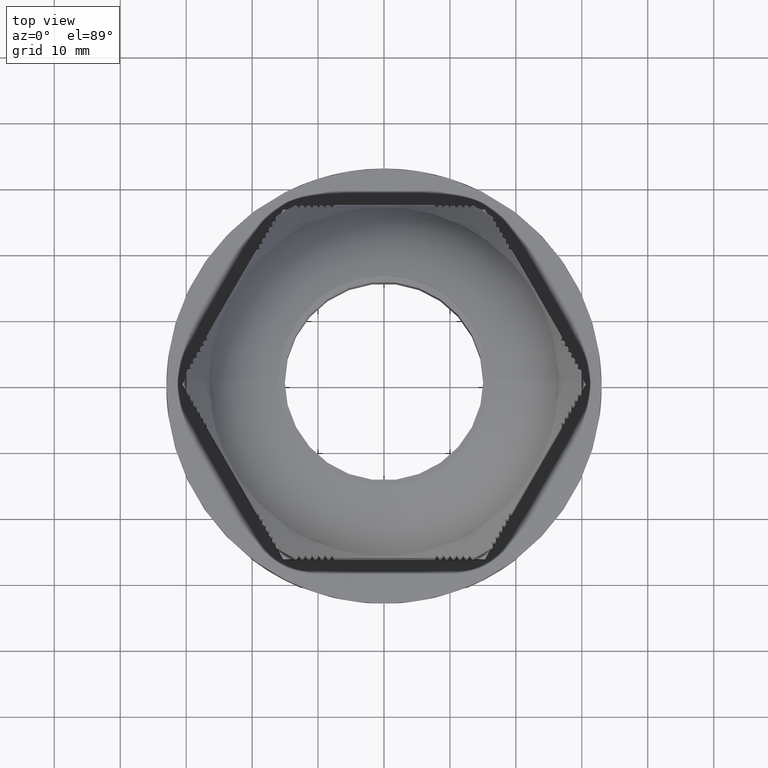
[diagram: clean part render]
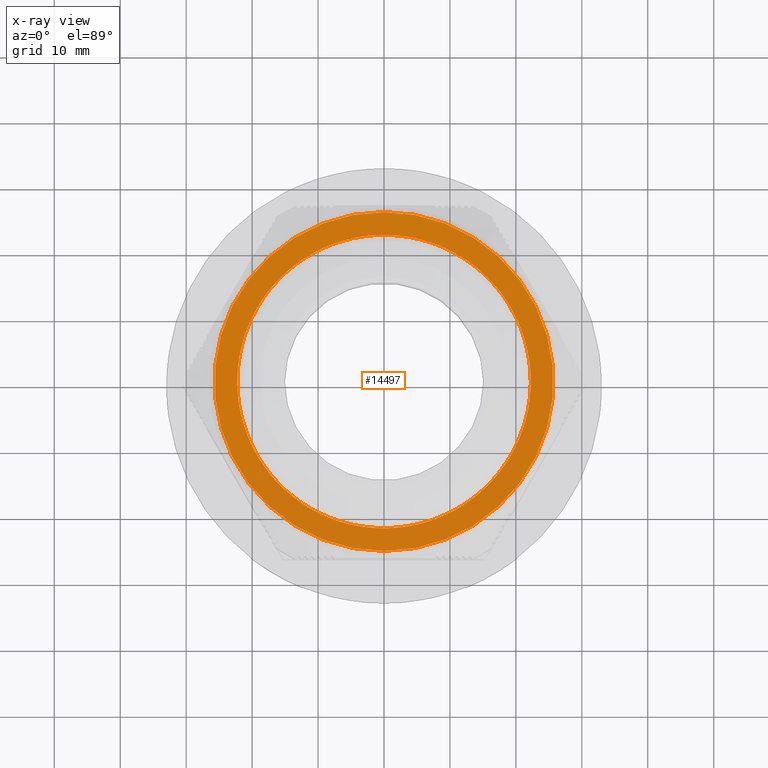
[diagram: x-ray — body ghosted, one internal face saturated and labeled with its STEP entity id]
A machine part, top view, then the same camera in x-ray: the body is ghosted and one INTERNAL B-rep face — a face not visible from any outside direction — is saturated and labeled: STEP entity #14497.
In plain terms, the highlighted planar face has unit normal (0, 0, -1).
Its self-contained STEP definition (entity closure, byte-faithful):
#77 = EDGE_CURVE ( 'NONE', #1212, #310, #20772, .T. ) ;
#78 = EDGE_CURVE ( 'NONE', #378, #3990, #9436, .T. ) ;
#79 = EDGE_CURVE ( 'NONE', #3970, #373, #9473, .T. ) ;
#83 = EDGE_CURVE ( 'NONE', #354, #334, #20742, .T. ) ;
#85 = EDGE_CURVE ( 'NONE', #370, #1194, #20798, .T. ) ;
#86 = EDGE_CURVE ( 'NONE', #349, #355, #20834, .T. ) ;
#93 = EDGE_CURVE ( 'NONE', #3988, #317, #9474, .T. ) ;
#96 = EDGE_CURVE ( 'NONE', #358, #4001, #20877, .T. ) ;
#98 = EDGE_CURVE ( 'NONE', #2342, #354, #9544, .T. ) ;
#102 = EDGE_CURVE ( 'NONE', #344, #339, #20911, .T. ) ;
#199 = EDGE_CURVE ( 'NONE', #3990, #3970, #9567, .T. ) ;
#214 = EDGE_CURVE ( 'NONE', #3972, #3989, #9627, .T. ) ;
#216 = EDGE_CURVE ( 'NONE', #4001, #3979, #9639, .T. ) ;
#291 = VERTEX_POINT ( 'NONE', #19250 ) ;
#296 = VERTEX_POINT ( 'NONE', #19277 ) ;
#298 = VERTEX_POINT ( 'NONE', #19233 ) ;
#302 = VERTEX_POINT ( 'NONE', #19235 ) ;
#307 = VERTEX_POINT ( 'NONE', #19217 ) ;
#308 = VERTEX_POINT ( 'NONE', #19267 ) ;
#310 = VERTEX_POINT ( 'NONE', #19244 ) ;
#314 = VERTEX_POINT ( 'NONE', #19247 ) ;
#317 = VERTEX_POINT ( 'NONE', #19252 ) ;
#325 = VERTEX_POINT ( 'NONE', #19256 ) ;
#327 = VERTEX_POINT ( 'NONE', #19264 ) ;
#328 = VERTEX_POINT ( 'NONE', #19271 ) ;
#329 = VERTEX_POINT ( 'NONE', #19220 ) ;
#332 = VERTEX_POINT ( 'NONE', #19248 ) ;
#333 = VERTEX_POINT ( 'NONE', #19265 ) ;
#334 = VERTEX_POINT ( 'NONE', #19257 ) ;
#337 = VERTEX_POINT ( 'NONE', #19258 ) ;
#338 = VERTEX_POINT ( 'NONE', #19222 ) ;
#339 = VERTEX_POINT ( 'NONE', #19236 ) ;
#340 = VERTEX_POINT ( 'NONE', #19224 ) ;
#342 = VERTEX_POINT ( 'NONE', #19231 ) ;
#344 = VERTEX_POINT ( 'NONE', #19263 ) ;
#347 = VERTEX_POINT ( 'NONE', #19237 ) ;
#348 = VERTEX_POINT ( 'NONE', #19242 ) ;
#349 = VERTEX_POINT ( 'NONE', #19228 ) ;
#352 = VERTEX_POINT ( 'NONE', #19266 ) ;
#353 = VERTEX_POINT ( 'NONE', #19216 ) ;
#354 = VERTEX_POINT ( 'NONE', #19269 ) ;
#355 = VERTEX_POINT ( 'NONE', #19240 ) ;
#356 = VERTEX_POINT ( 'NONE', #19273 ) ;
#358 = VERTEX_POINT ( 'NONE', #19274 ) ;
#361 = VERTEX_POINT ( 'NONE', #19332 ) ;
#364 = VERTEX_POINT ( 'NONE', #19335 ) ;
#365 = VERTEX_POINT ( 'NONE', #19336 ) ;
#366 = VERTEX_POINT ( 'NONE', #19331 ) ;
#370 = VERTEX_POINT ( 'NONE', #19312 ) ;
#373 = VERTEX_POINT ( 'NONE', #19322 ) ;
#374 = VERTEX_POINT ( 'NONE', #19323 ) ;
#377 = VERTEX_POINT ( 'NONE', #19280 ) ;
#378 = VERTEX_POINT ( 'NONE', #19300 ) ;
#381 = VERTEX_POINT ( 'NONE', #19283 ) ;
#390 = VERTEX_POINT ( 'NONE', #19338 ) ;
#391 = VERTEX_POINT ( 'NONE', #19339 ) ;
#397 = VERTEX_POINT ( 'NONE', #19334 ) ;
#402 = VERTEX_POINT ( 'NONE', #19285 ) ;
#414 = VERTEX_POINT ( 'NONE', #19301 ) ;
#438 = EDGE_CURVE ( 'NONE', #7420, #7457, #9640, .T. ) ;
#443 = EDGE_CURVE ( 'NONE', #3980, #4002, #9629, .T. ) ;
#465 = EDGE_CURVE ( 'NONE', #4020, #3977, #8619, .T. ) ;
#1167 = VERTEX_POINT ( 'NONE', #19555 ) ;
#1169 = VERTEX_POINT ( 'NONE', #19563 ) ;
#1189 = VERTEX_POINT ( 'NONE', #19557 ) ;
#1194 = VERTEX_POINT ( 'NONE', #19601 ) ;
#1198 = VERTEX_POINT ( 'NONE', #19538 ) ;
#1200 = VERTEX_POINT ( 'NONE', #19542 ) ;
#1202 = VERTEX_POINT ( 'NONE', #19540 ) ;
#1205 = VERTEX_POINT ( 'NONE', #19597 ) ;
#1210 = VERTEX_POINT ( 'NONE', #19628 ) ;
#1212 = VERTEX_POINT ( 'NONE', #19645 ) ;
#2342 = VERTEX_POINT ( 'NONE', #15809 ) ;
#2344 = VERTEX_POINT ( 'NONE', #15837 ) ;
#2347 = VERTEX_POINT ( 'NONE', #15844 ) ;
#2348 = VERTEX_POINT ( 'NONE', #15838 ) ;
#2364 = VERTEX_POINT ( 'NONE', #15839 ) ;
#2368 = VERTEX_POINT ( 'NONE', #15833 ) ;
#2378 = VERTEX_POINT ( 'NONE', #15824 ) ;
#2404 = VERTEX_POINT ( 'NONE', #15861 ) ;
#2409 = VERTEX_POINT ( 'NONE', #15931 ) ;
#2413 = VERTEX_POINT ( 'NONE', #15902 ) ;
#2416 = VERTEX_POINT ( 'NONE', #15886 ) ;
#2435 = VERTEX_POINT ( 'NONE', #15926 ) ;
#2438 = VERTEX_POINT ( 'NONE', #15884 ) ;
#2441 = VERTEX_POINT ( 'NONE', #15913 ) ;
#2444 = VERTEX_POINT ( 'NONE', #15916 ) ;
#2460 = VERTEX_POINT ( 'NONE', #15942 ) ;
#2462 = VERTEX_POINT ( 'NONE', #15909 ) ;
#2463 = VERTEX_POINT ( 'NONE', #15911 ) ;
#2612 = DIRECTION ( 'NONE',  ( 1.000000000000000000, 0.0000000000000000000, 0.0000000000000000000 ) ) ;
#2634 = CARTESIAN_POINT ( 'NONE',  ( 17.99812906184423900, 8.132026209573963300, 50.51502349691465100 ) ) ;
#2639 = DIRECTION ( 'NONE',  ( 0.0000000000000000000, 0.0000000000000000000, 1.000000000000000000 ) ) ;
#2668 = CARTESIAN_POINT ( 'NONE',  ( 19.52470402787395500, 2.974631510611447400, 50.51502349691465100 ) ) ;
#2681 = DIRECTION ( 'NONE',  ( 1.000000000000000000, 0.0000000000000000000, 0.0000000000000000000 ) ) ;
#2691 = DIRECTION ( 'NONE',  ( 0.0000000000000000000, 0.0000000000000000000, 1.000000000000000000 ) ) ;
#2736 = DIRECTION ( 'NONE',  ( 0.0000000000000000000, 0.0000000000000000000, 1.000000000000000000 ) ) ;
#2737 = CARTESIAN_POINT ( 'NONE',  ( 11.15268041620967300, 16.29969998294119900, 50.51502349691465100 ) ) ;
#2739 = DIRECTION ( 'NONE',  ( 1.000000000000000000, 0.0000000000000000000, 0.0000000000000000000 ) ) ;
#2793 = CARTESIAN_POINT ( 'NONE',  ( -4.300109881079950300, 19.27619140314389800, 50.51502349691465100 ) ) ;
#2797 = DIRECTION ( 'NONE',  ( 1.000000000000000000, 0.0000000000000000000, 0.0000000000000000000 ) ) ;
#2806 = DIRECTION ( 'NONE',  ( 0.0000000000000000000, 0.0000000000000000000, 1.000000000000000000 ) ) ;
#2867 = CARTESIAN_POINT ( 'NONE',  ( -9.341304342759997300, 17.40122217477649600, 50.51502349691465100 ) ) ;
#2871 = DIRECTION ( 'NONE',  ( 1.000000000000000000, 0.0000000000000000000, 0.0000000000000000000 ) ) ;
#2875 = LINE ( 'NONE', #2886, #9100 ) ;
#2876 = DIRECTION ( 'NONE',  ( 0.0000000000000000000, 0.0000000000000000000, 1.000000000000000000 ) ) ;
#2881 = DIRECTION ( 'NONE',  ( 0.0000000000000000000, 0.0000000000000000000, 1.000000000000000000 ) ) ;
#2884 = DIRECTION ( 'NONE',  ( 0.0000000000000000000, 0.0000000000000000000, 1.000000000000000000 ) ) ;
#2886 = CARTESIAN_POINT ( 'NONE',  ( -21.86917652314923200, 3.980364365986708700, 50.51502349691465100 ) ) ;
#2892 = DIRECTION ( 'NONE',  ( -0.7594002020212016200, 0.6506238031075700600, 0.0000000000000000000 ) ) ;
#2895 = CARTESIAN_POINT ( 'NONE',  ( 6.884832816301979200, -18.51112036294863100, 50.51502349691465100 ) ) ;
#2897 = CARTESIAN_POINT ( 'NONE',  ( 0.0000000000000000000, 0.0000000000000000000, 50.51502349691464400 ) ) ;
#2900 = DIRECTION ( 'NONE',  ( 1.000000000000000000, 0.0000000000000000000, 0.0000000000000000000 ) ) ;
#2903 = DIRECTION ( 'NONE',  ( 1.000000000000000000, 0.0000000000000000000, 0.0000000000000000000 ) ) ;
#2907 = CARTESIAN_POINT ( 'NONE',  ( 5.204170427930423600E-015, 5.871614749359417300E-031, 50.51502349691463700 ) ) ;
#2916 = CARTESIAN_POINT ( 'NONE',  ( 0.0000000000000000000, 0.0000000000000000000, 50.51502349691465100 ) ) ;
#2917 = DIRECTION ( 'NONE',  ( 1.000000000000000000, 0.0000000000000000000, 0.0000000000000000000 ) ) ;
#2926 = DIRECTION ( 'NONE',  ( -1.000000000000000000, -1.065814103640150400E-014, -3.121626811376398200E-016 ) ) ;
#2938 = DIRECTION ( 'NONE',  ( -3.121626811376398200E-016, -0.0000000000000000000, 1.000000000000000000 ) ) ;
#2949 = DIRECTION ( 'NONE',  ( 0.0000000000000000000, 0.0000000000000000000, 1.000000000000000000 ) ) ;
#2965 = CARTESIAN_POINT ( 'NONE',  ( 1.060004058786051300, 19.72153369784807400, 50.51502349691465100 ) ) ;
#2996 = DIRECTION ( 'NONE',  ( 0.0000000000000000000, 0.0000000000000000000, 1.000000000000000000 ) ) ;
#2997 = DIRECTION ( 'NONE',  ( 1.000000000000000000, 0.0000000000000000000, 0.0000000000000000000 ) ) ;
#3005 = CARTESIAN_POINT ( 'NONE',  ( 5.204170427930415800E-015, 5.871614749359417300E-031, 50.51502349691465100 ) ) ;
#3009 = DIRECTION ( 'NONE',  ( 1.000000000000000000, 0.0000000000000000000, 0.0000000000000000000 ) ) ;
#3010 = DIRECTION ( 'NONE',  ( 0.0000000000000000000, 0.0000000000000000000, 1.000000000000000000 ) ) ;
#3011 = DIRECTION ( 'NONE',  ( -3.121626811376398200E-016, -0.0000000000000000000, 1.000000000000000000 ) ) ;
#3012 = DIRECTION ( 'NONE',  ( 1.000000000000000000, 0.0000000000000000000, 0.0000000000000000000 ) ) ;
#3014 = CARTESIAN_POINT ( 'NONE',  ( -13.68969699496140200, 14.23568390300041600, 50.51502349691464400 ) ) ;
#3016 = DIRECTION ( 'NONE',  ( 0.0000000000000000000, 0.0000000000000000000, 1.000000000000000000 ) ) ;
#3020 = CARTESIAN_POINT ( 'NONE',  ( 0.0000000000000000000, 0.0000000000000000000, 50.51502349691465100 ) ) ;
#3023 = LINE ( 'NONE', #3031, #9147 ) ;
#3025 = CARTESIAN_POINT ( 'NONE',  ( 0.0000000000000000000, 0.0000000000000000000, 50.51502349691465100 ) ) ;
#3026 = DIRECTION ( 'NONE',  ( 0.0000000000000000000, 0.0000000000000000000, 1.000000000000000000 ) ) ;
#3027 = DIRECTION ( 'NONE',  ( 1.000000000000000000, 0.0000000000000000000, 0.0000000000000000000 ) ) ;
#3030 = CARTESIAN_POINT ( 'NONE',  ( 5.204170427930422900E-015, 5.871614749359417300E-031, 50.51502349691463700 ) ) ;
#3031 = CARTESIAN_POINT ( 'NONE',  ( 14.45220718201574400, -16.88898723591119500, 50.51502349691465100 ) ) ;
#3034 = DIRECTION ( 'NONE',  ( -1.000000000000000000, 1.598721155460225400E-014, -3.121626811376399200E-016 ) ) ;
#3035 = DIRECTION ( 'NONE',  ( -3.121626811376398200E-016, -0.0000000000000000000, 1.000000000000000000 ) ) ;
#3048 = CARTESIAN_POINT ( 'NONE',  ( -12.01788174588489600, 18.69959092142406100, 50.51502349691465100 ) ) ;
#3049 = DIRECTION ( 'NONE',  ( 0.0000000000000000000, 0.0000000000000000000, 1.000000000000000000 ) ) ;
#3050 = CARTESIAN_POINT ( 'NONE',  ( -6.527136837856689400, 21.24854505575788400, 50.51502349691465100 ) ) ;
#3051 = DIRECTION ( 'NONE',  ( 0.2283057749241813300, 0.9735894787518345500, 0.0000000000000000000 ) ) ;
#3052 = DIRECTION ( 'NONE',  ( 0.9557396798973476500, -0.2942136371239707500, 0.0000000000000000000 ) ) ;
#3053 = CARTESIAN_POINT ( 'NONE',  ( -19.98431868022934000, 9.732994871760436000, 50.51502349691465100 ) ) ;
#3054 = LINE ( 'NONE', #3061, #9164 ) ;
#3055 = LINE ( 'NONE', #3074, #9196 ) ;
#3056 = DIRECTION ( 'NONE',  ( -0.5557033812253026100, 0.8313806300935606700, 0.0000000000000000000 ) ) ;
#3059 = DIRECTION ( 'NONE',  ( 1.000000000000000000, 0.0000000000000000000, 0.0000000000000000000 ) ) ;
#3061 = CARTESIAN_POINT ( 'NONE',  ( 15.86336161197941800, 15.57106099963187200, 50.51502349691465100 ) ) ;
#3062 = LINE ( 'NONE', #3048, #9190 ) ;
#3064 = CARTESIAN_POINT ( 'NONE',  ( 0.0000000000000000000, 0.0000000000000000000, 50.51502349691464400 ) ) ;
#3065 = CARTESIAN_POINT ( 'NONE',  ( 21.64443736304449900, 5.061868580269760700, 50.51502349691465100 ) ) ;
#3066 = DIRECTION ( 'NONE',  ( 0.0000000000000000000, 0.0000000000000000000, 1.000000000000000000 ) ) ;
#3067 = CARTESIAN_POINT ( 'NONE',  ( 5.204170427930405500E-015, 5.669504758058049200E-030, 50.51502349691465100 ) ) ;
#3069 = LINE ( 'NONE', #3053, #9188 ) ;
#3070 = DIRECTION ( 'NONE',  ( 1.000000000000000000, 0.0000000000000000000, 0.0000000000000000000 ) ) ;
#3071 = DIRECTION ( 'NONE',  ( 1.000000000000000000, 0.0000000000000000000, 0.0000000000000000000 ) ) ;
#3072 = DIRECTION ( 'NONE',  ( -4.682440217064597300E-016, 1.560813405688199100E-016, 1.000000000000000000 ) ) ;
#3073 = DIRECTION ( 'NONE',  ( 0.9694712119304942400, 0.2452051574457985700, 0.0000000000000000000 ) ) ;
#3074 = CARTESIAN_POINT ( 'NONE',  ( -16.61731534297153700, 14.76377367338449400, 50.51502349691465100 ) ) ;
#3077 = DIRECTION ( 'NONE',  ( -1.000000000000000000, 0.0000000000000000000, -3.121626811376399200E-016 ) ) ;
#3078 = DIRECTION ( 'NONE',  ( -0.04283172032414915600, 0.9990823007811087100, 0.0000000000000000000 ) ) ;
#3080 = LINE ( 'NONE', #3065, #9144 ) ;
#3084 = LINE ( 'NONE', #3050, #9167 ) ;
#3085 = DIRECTION ( 'NONE',  ( -1.000000000000000000, -5.506706202140776400E-014, -3.121626811376398200E-016 ) ) ;
#3086 = DIRECTION ( 'NONE',  ( 0.0000000000000000000, 0.0000000000000000000, 1.000000000000000000 ) ) ;
#3087 = CARTESIAN_POINT ( 'NONE',  ( 6.341502346807791600, 18.70422005819626300, 50.51502349691465100 ) ) ;
#3089 = DIRECTION ( 'NONE',  ( 0.1784744724384143800, -0.9839445424859215600, 0.0000000000000000000 ) ) ;
#3090 = CARTESIAN_POINT ( 'NONE',  ( 0.0000000000000000000, 0.0000000000000000000, 50.51502349691465100 ) ) ;
#3094 = DIRECTION ( 'NONE',  ( -1.000000000000000000, 0.0000000000000000000, -3.121626811376398200E-016 ) ) ;
#3095 = DIRECTION ( 'NONE',  ( 0.8673650298040310700, 0.4976724877598240900, 0.0000000000000000000 ) ) ;
#3097 = DIRECTION ( 'NONE',  ( -4.682440217064597300E-016, -0.0000000000000000000, 1.000000000000000000 ) ) ;
#3098 = DIRECTION ( 'NONE',  ( 0.0000000000000000000, 0.0000000000000000000, 1.000000000000000000 ) ) ;
#3099 = CARTESIAN_POINT ( 'NONE',  ( 5.463490602181639000, 21.54656475465525000, 50.51502349691465100 ) ) ;
#3100 = DIRECTION ( 'NONE',  ( 1.000000000000000000, 0.0000000000000000000, 0.0000000000000000000 ) ) ;
#3101 = CARTESIAN_POINT ( 'NONE',  ( 5.204170427930418100E-015, 1.607976518884575000E-030, 50.51502349691463000 ) ) ;
#3102 = DIRECTION ( 'NONE',  ( -1.000000000000000000, 1.687538997430237900E-014, -6.243253622752796400E-016 ) ) ;
#3103 = DIRECTION ( 'NONE',  ( -1.000000000000000000, -3.197442310920450800E-014, -3.121626811376399200E-016 ) ) ;
#3104 = DIRECTION ( 'NONE',  ( 0.0000000000000000000, 0.0000000000000000000, 1.000000000000000000 ) ) ;
#3105 = DIRECTION ( 'NONE',  ( 0.7009303513478923900, 0.7132297263570273000, 0.0000000000000000000 ) ) ;
#3106 = LINE ( 'NONE', #3115, #9168 ) ;
#3107 = CARTESIAN_POINT ( 'NONE',  ( 0.0000000000000000000, 0.0000000000000000000, 50.51502349691465100 ) ) ;
#3108 = LINE ( 'NONE', #3123, #9152 ) ;
#3109 = CARTESIAN_POINT ( 'NONE',  ( 5.204170427930411800E-015, 5.871614749359415500E-031, 50.51502349691465100 ) ) ;
#3111 = CARTESIAN_POINT ( 'NONE',  ( 0.0000000000000000000, 0.0000000000000000000, 50.51502349691465100 ) ) ;
#3112 = CARTESIAN_POINT ( 'NONE',  ( 5.204170427930406300E-015, 5.478789995265007600E-030, 50.51502349691465100 ) ) ;
#3113 = DIRECTION ( 'NONE',  ( -0.3107925828177994200, 0.9504777590588016100, 0.0000000000000000000 ) ) ;
#3115 = CARTESIAN_POINT ( 'NONE',  ( -8.346526878059478300, -20.60193368013083800, 50.51502349691465100 ) ) ;
#3116 = DIRECTION ( 'NONE',  ( -1.000000000000000000, 0.0000000000000000000, -3.121626811376399200E-016 ) ) ;
#3117 = LINE ( 'NONE', #3099, #9192 ) ;
#3120 = DIRECTION ( 'NONE',  ( -0.7915199501045338000, -0.6111433290043476500, 0.0000000000000000000 ) ) ;
#3122 = CARTESIAN_POINT ( 'NONE',  ( 0.0000000000000000000, 0.0000000000000000000, 50.51502349691465100 ) ) ;
#3123 = CARTESIAN_POINT ( 'NONE',  ( 11.07408315043467100, 19.27352756150097700, 50.51502349691465100 ) ) ;
#3127 = CARTESIAN_POINT ( 'NONE',  ( 5.204170427930421300E-015, 5.700517939057650300E-031, 50.51502349691465100 ) ) ;
#3128 = DIRECTION ( 'NONE',  ( -4.682440217064597300E-016, 1.560813405688199100E-016, 1.000000000000000000 ) ) ;
#3129 = DIRECTION ( 'NONE',  ( 0.0000000000000000000, 0.0000000000000000000, 1.000000000000000000 ) ) ;
#3130 = DIRECTION ( 'NONE',  ( 1.000000000000000000, 0.0000000000000000000, 0.0000000000000000000 ) ) ;
#3132 = DIRECTION ( 'NONE',  ( -4.682440217064598300E-016, 1.560813405688199600E-016, 1.000000000000000000 ) ) ;
#3133 = DIRECTION ( 'NONE',  ( 1.000000000000000000, 0.0000000000000000000, 0.0000000000000000000 ) ) ;
#3134 = DIRECTION ( 'NONE',  ( -4.682440217064597300E-016, 1.560813405688199100E-016, 1.000000000000000000 ) ) ;
#3135 = DIRECTION ( 'NONE',  ( 1.000000000000000000, 0.0000000000000000000, 0.0000000000000000000 ) ) ;
#3137 = DIRECTION ( 'NONE',  ( 0.0000000000000000000, 0.0000000000000000000, 1.000000000000000000 ) ) ;
#3138 = DIRECTION ( 'NONE',  ( -1.000000000000000000, 0.0000000000000000000, -3.121626811376398200E-016 ) ) ;
#3142 = CARTESIAN_POINT ( 'NONE',  ( 0.0000000000000000000, 0.0000000000000000000, 50.51502349691465800 ) ) ;
#3143 = CARTESIAN_POINT ( 'NONE',  ( 0.0000000000000000000, 0.0000000000000000000, 50.51502349691465100 ) ) ;
#3144 = DIRECTION ( 'NONE',  ( 0.0000000000000000000, 0.0000000000000000000, 1.000000000000000000 ) ) ;
#3145 = DIRECTION ( 'NONE',  ( 1.000000000000000000, 0.0000000000000000000, 0.0000000000000000000 ) ) ;
#3146 = CARTESIAN_POINT ( 'NONE',  ( 0.0000000000000000000, 0.0000000000000000000, 50.51502349691465100 ) ) ;
#3148 = DIRECTION ( 'NONE',  ( -4.682440217064597300E-016, 1.560813405688199100E-016, 1.000000000000000000 ) ) ;
#3150 = CARTESIAN_POINT ( 'NONE',  ( 21.12349295497314800, -6.921143523138248100, 50.51502349691465100 ) ) ;
#3151 = CARTESIAN_POINT ( 'NONE',  ( -0.5523040502288141300, 22.22159180893167700, 50.51502349691465100 ) ) ;
#3152 = DIRECTION ( 'NONE',  ( -4.682440217064597300E-016, 1.560813405688199100E-016, 1.000000000000000000 ) ) ;
#3153 = DIRECTION ( 'NONE',  ( 1.000000000000000000, 0.0000000000000000000, 0.0000000000000000000 ) ) ;
#3154 = DIRECTION ( 'NONE',  ( -3.121626811376398200E-016, -0.0000000000000000000, 1.000000000000000000 ) ) ;
#3155 = CARTESIAN_POINT ( 'NONE',  ( 5.204170427930422100E-015, 4.299873812634990300E-031, 50.51502349691462300 ) ) ;
#3156 = CARTESIAN_POINT ( 'NONE',  ( 5.204170427930421300E-015, 7.113432236787326000E-031, 50.51502349691463000 ) ) ;
#3158 = CARTESIAN_POINT ( 'NONE',  ( 3.572999554707613400, -21.93941331186269000, 50.51502349691465100 ) ) ;
#3159 = LINE ( 'NONE', #3158, #9214 ) ;
#3160 = DIRECTION ( 'NONE',  ( 0.0000000000000000000, 0.0000000000000000000, 1.000000000000000000 ) ) ;
#3161 = DIRECTION ( 'NONE',  ( 1.000000000000000000, 0.0000000000000000000, 0.0000000000000000000 ) ) ;
#3162 = DIRECTION ( 'NONE',  ( 0.0000000000000000000, 0.0000000000000000000, 1.000000000000000000 ) ) ;
#3163 = DIRECTION ( 'NONE',  ( 0.4825108752754433400, 0.8758899789590731700, 0.0000000000000000000 ) ) ;
#3165 = DIRECTION ( 'NONE',  ( 0.0000000000000000000, 0.0000000000000000000, 1.000000000000000000 ) ) ;
#3166 = DIRECTION ( 'NONE',  ( -1.000000000000000000, 0.0000000000000000000, -3.121626811376398700E-016 ) ) ;
#3167 = LINE ( 'NONE', #3151, #9207 ) ;
#3169 = CARTESIAN_POINT ( 'NONE',  ( 5.204170427930416600E-015, 5.871614749359417300E-031, 50.51502349691465100 ) ) ;
#3173 = CARTESIAN_POINT ( 'NONE',  ( -17.02278744724308600, 10.01435008005928000, 50.51502349691464400 ) ) ;
#3174 = DIRECTION ( 'NONE',  ( -0.3587497395332271400, -0.9334337814675669500, 0.0000000000000000000 ) ) ;
#3175 = CARTESIAN_POINT ( 'NONE',  ( 0.0000000000000000000, 0.0000000000000000000, 50.51502349691464400 ) ) ;
#3177 = DIRECTION ( 'NONE',  ( -1.000000000000000000, 0.0000000000000000000, -6.243253622752796400E-016 ) ) ;
#3178 = DIRECTION ( 'NONE',  ( 1.000000000000000000, 0.0000000000000000000, 0.0000000000000000000 ) ) ;
#3179 = LINE ( 'NONE', #3150, #9224 ) ;
#3181 = DIRECTION ( 'NONE',  ( -1.000000000000000000, 1.776356839400250500E-014, -6.243253622752796400E-016 ) ) ;
#3182 = DIRECTION ( 'NONE',  ( -4.682440217064597300E-016, -0.0000000000000000000, 1.000000000000000000 ) ) ;
#3183 = DIRECTION ( 'NONE',  ( -0.09360890569899411900, -0.9956090461490577600, 0.0000000000000000000 ) ) ;
#3185 = DIRECTION ( 'NONE',  ( 0.0000000000000000000, 0.0000000000000000000, 1.000000000000000000 ) ) ;
#3186 = CARTESIAN_POINT ( 'NONE',  ( 9.359685911533951200, -20.16185660905541300, 50.51502349691465100 ) ) ;
#3187 = DIRECTION ( 'NONE',  ( -3.121626811376398200E-016, -0.0000000000000000000, 1.000000000000000000 ) ) ;
#3188 = CARTESIAN_POINT ( 'NONE',  ( 5.204170427930421300E-015, 5.922254434279958200E-031, 50.51502349691463000 ) ) ;
#3189 = DIRECTION ( 'NONE',  ( 1.000000000000000000, 0.0000000000000000000, 0.0000000000000000000 ) ) ;
#3190 = DIRECTION ( 'NONE',  ( -1.000000000000000000, 0.0000000000000000000, -3.121626811376398200E-016 ) ) ;
#3191 = CARTESIAN_POINT ( 'NONE',  ( 5.204170427930421300E-015, 5.871614749359421700E-031, 50.51502349691463700 ) ) ;
#3192 = DIRECTION ( 'NONE',  ( -1.000000000000000000, 0.0000000000000000000, -6.243253622752794400E-016 ) ) ;
#3193 = DIRECTION ( 'NONE',  ( 1.000000000000000000, 0.0000000000000000000, 0.0000000000000000000 ) ) ;
#3194 = CARTESIAN_POINT ( 'NONE',  ( 5.204170427930422100E-015, 5.871614749359417300E-031, 50.51502349691464400 ) ) ;
#3195 = DIRECTION ( 'NONE',  ( -4.682440217064597300E-016, 1.560813405688199100E-016, 1.000000000000000000 ) ) ;
#3196 = CARTESIAN_POINT ( 'NONE',  ( 18.47287436025603200, -12.36353894145499600, 50.51502349691465100 ) ) ;
#3197 = DIRECTION ( 'NONE',  ( 0.0000000000000000000, 0.0000000000000000000, 1.000000000000000000 ) ) ;
#3198 = DIRECTION ( 'NONE',  ( -3.121626811376398200E-016, -0.0000000000000000000, 1.000000000000000000 ) ) ;
#3199 = CARTESIAN_POINT ( 'NONE',  ( 0.0000000000000000000, 0.0000000000000000000, 50.51502349691464400 ) ) ;
#3200 = CARTESIAN_POINT ( 'NONE',  ( 0.0000000000000000000, 0.0000000000000000000, 50.51502349691465100 ) ) ;
#3201 = CARTESIAN_POINT ( 'NONE',  ( 5.204170427930420500E-015, 9.725532590965867300E-031, 50.51502349691463000 ) ) ;
#3202 = DIRECTION ( 'NONE',  ( 0.0000000000000000000, 0.0000000000000000000, 1.000000000000000000 ) ) ;
#3203 = DIRECTION ( 'NONE',  ( -4.682440217064597300E-016, 1.560813405688199100E-016, 1.000000000000000000 ) ) ;
#3204 = CARTESIAN_POINT ( 'NONE',  ( 5.204170427930421300E-015, 5.871614749359417300E-031, 50.51502349691464400 ) ) ;
#3205 = DIRECTION ( 'NONE',  ( -3.121626811376398200E-016, -0.0000000000000000000, 1.000000000000000000 ) ) ;
#3206 = DIRECTION ( 'NONE',  ( -4.682440217064598300E-016, 1.560813405688199600E-016, 1.000000000000000000 ) ) ;
#3207 = DIRECTION ( 'NONE',  ( -1.000000000000000000, -1.687538997430237600E-014, -3.121626811376398200E-016 ) ) ;
#3208 = DIRECTION ( 'NONE',  ( 1.000000000000000000, 0.0000000000000000000, 0.0000000000000000000 ) ) ;
#3209 = DIRECTION ( 'NONE',  ( -1.000000000000000000, -9.769962616701377600E-015, -3.121626811376398200E-016 ) ) ;
#3210 = CARTESIAN_POINT ( 'NONE',  ( 0.0000000000000000000, 0.0000000000000000000, 50.51502349691465100 ) ) ;
#3211 = DIRECTION ( 'NONE',  ( 0.6637338444681403200, -0.7479688387276187700, 0.0000000000000000000 ) ) ;
#3212 = CARTESIAN_POINT ( 'NONE',  ( 5.204170427930422900E-015, 5.871614749359417300E-031, 50.51502349691463700 ) ) ;
#3213 = LINE ( 'NONE', #3196, #9218 ) ;
#3214 = LINE ( 'NONE', #3186, #9249 ) ;
#3215 = CARTESIAN_POINT ( 'NONE',  ( 5.204170427930418100E-015, 1.574271736516684000E-030, 50.51502349691465100 ) ) ;
#3216 = DIRECTION ( 'NONE',  ( -1.000000000000000000, 1.953992523340275500E-014, -6.243253622752798300E-016 ) ) ;
#3217 = DIRECTION ( 'NONE',  ( 0.4373212154214366500, -0.8993053733534106500, 0.0000000000000000000 ) ) ;
#3218 = DIRECTION ( 'NONE',  ( -1.000000000000000000, 0.0000000000000000000, -6.243253622752796400E-016 ) ) ;
#3219 = CARTESIAN_POINT ( 'NONE',  ( 0.0000000000000000000, 0.0000000000000000000, 50.51502349691465800 ) ) ;
#3220 = DIRECTION ( 'NONE',  ( 0.9996761493038165400, -0.02544791765731535500, 0.0000000000000000000 ) ) ;
#3221 = DIRECTION ( 'NONE',  ( 1.000000000000000000, 0.0000000000000000000, 0.0000000000000000000 ) ) ;
#3223 = DIRECTION ( 'NONE',  ( 1.000000000000000000, 0.0000000000000000000, 0.0000000000000000000 ) ) ;
#3224 = CARTESIAN_POINT ( 'NONE',  ( 5.204170427930417300E-015, 1.767046558078829600E-030, 50.51502349691465800 ) ) ;
#3225 = DIRECTION ( 'NONE',  ( 0.0000000000000000000, 0.0000000000000000000, 1.000000000000000000 ) ) ;
#3226 = CARTESIAN_POINT ( 'NONE',  ( 19.47612711281418300, 10.71376007628429200, 50.51502349691465100 ) ) ;
#3228 = DIRECTION ( 'NONE',  ( 1.000000000000000000, 0.0000000000000000000, 0.0000000000000000000 ) ) ;
#3230 = DIRECTION ( 'NONE',  ( 0.0000000000000000000, 0.0000000000000000000, 1.000000000000000000 ) ) ;
#3233 = CARTESIAN_POINT ( 'NONE',  ( 0.0000000000000000000, 0.0000000000000000000, 50.51502349691465100 ) ) ;
#3234 = DIRECTION ( 'NONE',  ( 0.0000000000000000000, 0.0000000000000000000, 1.000000000000000000 ) ) ;
#3235 = DIRECTION ( 'NONE',  ( 1.000000000000000000, 0.0000000000000000000, 0.0000000000000000000 ) ) ;
#3239 = DIRECTION ( 'NONE',  ( -4.682440217064598300E-016, 1.560813405688199600E-016, 1.000000000000000000 ) ) ;
#3240 = DIRECTION ( 'NONE',  ( 0.0000000000000000000, 0.0000000000000000000, 1.000000000000000000 ) ) ;
#3242 = CARTESIAN_POINT ( 'NONE',  ( 5.204170427930419700E-015, 1.117127626486770600E-030, 50.51502349691463000 ) ) ;
#3244 = DIRECTION ( 'NONE',  ( -1.000000000000000000, -2.930988785010413300E-014, -3.121626811376399200E-016 ) ) ;
#3246 = CARTESIAN_POINT ( 'NONE',  ( 0.0000000000000000000, 0.0000000000000000000, 50.51502349691465100 ) ) ;
#3247 = DIRECTION ( 'NONE',  ( 1.000000000000000000, 0.0000000000000000000, 0.0000000000000000000 ) ) ;
#3250 = LINE ( 'NONE', #3226, #9206 ) ;
#3252 = CARTESIAN_POINT ( 'NONE',  ( 0.0000000000000000000, 0.0000000000000000000, 50.51502349691465100 ) ) ;
#3255 = DIRECTION ( 'NONE',  ( 1.000000000000000000, 0.0000000000000000000, 0.0000000000000000000 ) ) ;
#3256 = DIRECTION ( 'NONE',  ( 0.0000000000000000000, 0.0000000000000000000, 1.000000000000000000 ) ) ;
#3259 = DIRECTION ( 'NONE',  ( -4.682440217064597300E-016, 1.560813405688199100E-016, 1.000000000000000000 ) ) ;
#3261 = DIRECTION ( 'NONE',  ( 0.0000000000000000000, 0.0000000000000000000, 1.000000000000000000 ) ) ;
#3262 = DIRECTION ( 'NONE',  ( -1.000000000000000000, -7.105427357601001900E-015, -3.121626811376398200E-016 ) ) ;
#3264 = CARTESIAN_POINT ( 'NONE',  ( 0.0000000000000000000, 0.0000000000000000000, 50.51502349691465100 ) ) ;
#3266 = CARTESIAN_POINT ( 'NONE',  ( 0.0000000000000000000, 0.0000000000000000000, 50.51502349691465100 ) ) ;
#3597 = EDGE_LOOP ( 'NONE', ( #12693, #8208 ) ) ;
#3970 = VERTEX_POINT ( 'NONE', #16686 ) ;
#3972 = VERTEX_POINT ( 'NONE', #16668 ) ;
#3977 = VERTEX_POINT ( 'NONE', #16643 ) ;
#3979 = VERTEX_POINT ( 'NONE', #16692 ) ;
#3980 = VERTEX_POINT ( 'NONE', #16680 ) ;
#3988 = VERTEX_POINT ( 'NONE', #16679 ) ;
#3989 = VERTEX_POINT ( 'NONE', #16682 ) ;
#3990 = VERTEX_POINT ( 'NONE', #16652 ) ;
#4001 = VERTEX_POINT ( 'NONE', #16688 ) ;
#4002 = VERTEX_POINT ( 'NONE', #16638 ) ;
#4020 = VERTEX_POINT ( 'NONE', #16748 ) ;
#4022 = VERTEX_POINT ( 'NONE', #16730 ) ;
#4029 = VERTEX_POINT ( 'NONE', #16751 ) ;
#4295 = EDGE_LOOP ( 'NONE', ( #12638, #12652, #8195, #8164, #8192, #12694, #12661, #12641, #8197, #12680, #12634, #8166, #8177, #12643, #12633, #8170, #8139, #8204, #8145, #8205, #8206, #12647, #12682, #12669, #12648, #12642, #12653, #8203, #8140, #8190, #8198, #12654, #12662, #12686, #12655, #12687, #8160, #12681, #8161, #8178, #8200, #8176, #8162, #8163, #8167, #8132, #8202, #8168, #8171, #8193, #8169, #8191, #8173, #8196, #8209, #8199, #8194, #12639, #12663, #12690, #12635, #12659, #12637, #12649, #12685, #12636, #12644, #12657, #12688, #14501, #14450, #14492, #14393, #14466, #14529, #14426, #14473, #14464, #14457, #14477, #14461, #14505, #14454, #14463, #14421, #14513, #14471, #14424, #14494, #14435, #14485, #14496, #14480, #14442 ) ) ;
#5996 = DIRECTION ( 'NONE',  ( 1.000000000000000000, 0.0000000000000000000, 0.0000000000000000000 ) ) ;
#5999 = CARTESIAN_POINT ( 'NONE',  ( 19.60322101573395400, -2.403377999459694400, 50.51502349691465100 ) ) ;
#6004 = DIRECTION ( 'NONE',  ( 0.0000000000000000000, 0.0000000000000000000, 1.000000000000000000 ) ) ;
#7243 = CARTESIAN_POINT ( 'NONE',  ( 15.13671519925929800, 12.68630572611715500, 50.51502349691465100 ) ) ;
#7267 = DIRECTION ( 'NONE',  ( 0.0000000000000000000, 0.0000000000000000000, 1.000000000000000000 ) ) ;
#7270 = DIRECTION ( 'NONE',  ( 1.000000000000000000, 0.0000000000000000000, 0.0000000000000000000 ) ) ;
#7420 = VERTEX_POINT ( 'NONE', #11988 ) ;
#7457 = VERTEX_POINT ( 'NONE', #12065 ) ;
#7695 = VERTEX_POINT ( 'NONE', #12283 ) ;
#7707 = VERTEX_POINT ( 'NONE', #11090 ) ;
#8132 = ORIENTED_EDGE ( 'NONE', *, *, #216, .F. ) ;
#8139 = ORIENTED_EDGE ( 'NONE', *, *, #13254, .F. ) ;
#8140 = ORIENTED_EDGE ( 'NONE', *, *, #13279, .F. ) ;
#8145 = ORIENTED_EDGE ( 'NONE', *, *, #13303, .F. ) ;
#8160 = ORIENTED_EDGE ( 'NONE', *, *, #13276, .F. ) ;
#8161 = ORIENTED_EDGE ( 'NONE', *, *, #13297, .F. ) ;
#8162 = ORIENTED_EDGE ( 'NONE', *, *, #93, .F. ) ;
#8163 = ORIENTED_EDGE ( 'NONE', *, *, #13183, .F. ) ;
#8164 = ORIENTED_EDGE ( 'NONE', *, *, #13848, .F. ) ;
#8166 = ORIENTED_EDGE ( 'NONE', *, *, #13246, .F. ) ;
#8167 = ORIENTED_EDGE ( 'NONE', *, *, #13289, .F. ) ;
#8168 = ORIENTED_EDGE ( 'NONE', *, *, #13298, .F. ) ;
#8169 = ORIENTED_EDGE ( 'NONE', *, *, #13290, .F. ) ;
#8170 = ORIENTED_EDGE ( 'NONE', *, *, #13218, .F. ) ;
#8171 = ORIENTED_EDGE ( 'NONE', *, *, #13141, .F. ) ;
#8173 = ORIENTED_EDGE ( 'NONE', *, *, #79, .F. ) ;
#8176 = ORIENTED_EDGE ( 'NONE', *, *, #13262, .F. ) ;
#8177 = ORIENTED_EDGE ( 'NONE', *, *, #13293, .F. ) ;
#8178 = ORIENTED_EDGE ( 'NONE', *, *, #13168, .F. ) ;
#8190 = ORIENTED_EDGE ( 'NONE', *, *, #13275, .F. ) ;
#8191 = ORIENTED_EDGE ( 'NONE', *, *, #13291, .F. ) ;
#8192 = ORIENTED_EDGE ( 'NONE', *, *, #13232, .F. ) ;
#8193 = ORIENTED_EDGE ( 'NONE', *, *, #443, .F. ) ;
#8194 = ORIENTED_EDGE ( 'NONE', *, *, #13295, .F. ) ;
#8195 = ORIENTED_EDGE ( 'NONE', *, *, #13226, .F. ) ;
#8196 = ORIENTED_EDGE ( 'NONE', *, *, #199, .F. ) ;
#8197 = ORIENTED_EDGE ( 'NONE', *, *, #13260, .F. ) ;
#8198 = ORIENTED_EDGE ( 'NONE', *, *, #13304, .F. ) ;
#8199 = ORIENTED_EDGE ( 'NONE', *, *, #13296, .F. ) ;
#8200 = ORIENTED_EDGE ( 'NONE', *, *, #13313, .F. ) ;
#8202 = ORIENTED_EDGE ( 'NONE', *, *, #96, .F. ) ;
#8203 = ORIENTED_EDGE ( 'NONE', *, *, #13257, .F. ) ;
#8204 = ORIENTED_EDGE ( 'NONE', *, *, #13265, .F. ) ;
#8205 = ORIENTED_EDGE ( 'NONE', *, *, #13198, .F. ) ;
#8206 = ORIENTED_EDGE ( 'NONE', *, *, #13309, .F. ) ;
#8208 = ORIENTED_EDGE ( 'NONE', *, *, #438, .F. ) ;
#8209 = ORIENTED_EDGE ( 'NONE', *, *, #78, .F. ) ;
#8610 = AXIS2_PLACEMENT_3D ( 'NONE', #19477, #19471, #19474 ) ;
#8619 = CIRCLE ( 'NONE', #8610, 2.500000000000000400 ) ;
#8960 = AXIS2_PLACEMENT_3D ( 'NONE', #5999, #6004, #5996 ) ;
#8991 = CIRCLE ( 'NONE', #8960, 2.500000000000002200 ) ;
#8993 = AXIS2_PLACEMENT_3D ( 'NONE', #7243, #7267, #7270 ) ;
#9006 = CIRCLE ( 'NONE', #8993, 2.499999999999996900 ) ;
#9013 = AXIS2_PLACEMENT_3D ( 'NONE', #2668, #2691, #2681 ) ;
#9016 = CIRCLE ( 'NONE', #9018, 2.500000000000000400 ) ;
#9018 = AXIS2_PLACEMENT_3D ( 'NONE', #2737, #2736, #2739 ) ;
#9053 = CIRCLE ( 'NONE', #9058, 2.499999999999998700 ) ;
#9057 = CIRCLE ( 'NONE', #9013, 2.500000000000002200 ) ;
#9058 = AXIS2_PLACEMENT_3D ( 'NONE', #2634, #2639, #2612 ) ;
#9072 = AXIS2_PLACEMENT_3D ( 'NONE', #2895, #2876, #2871 ) ;
#9077 = CIRCLE ( 'NONE', #9113, 22.22845433867768600 ) ;
#9079 = AXIS2_PLACEMENT_3D ( 'NONE', #2897, #2881, #2900 ) ;
#9087 = CIRCLE ( 'NONE', #9109, 2.500000000000000400 ) ;
#9090 = CIRCLE ( 'NONE', #9079, 22.25000000000000400 ) ;
#9092 = CIRCLE ( 'NONE', #9072, 2.499999999999998700 ) ;
#9094 = AXIS2_PLACEMENT_3D ( 'NONE', #2793, #2806, #2797 ) ;
#9100 = VECTOR ( 'NONE', #2892, 1000.000000000000100 ) ;
#9109 = AXIS2_PLACEMENT_3D ( 'NONE', #2867, #2884, #2903 ) ;
#9110 = CIRCLE ( 'NONE', #9094, 2.500000000000000400 ) ;
#9113 = AXIS2_PLACEMENT_3D ( 'NONE', #2907, #2938, #2926 ) ;
#9120 = CIRCLE ( 'NONE', #9121, 22.25000000000000400 ) ;
#9121 = AXIS2_PLACEMENT_3D ( 'NONE', #2916, #2949, #2917 ) ;
#9122 = CIRCLE ( 'NONE', #9123, 2.499999999999999100 ) ;
#9123 = AXIS2_PLACEMENT_3D ( 'NONE', #2965, #2996, #2997 ) ;
#9136 = CIRCLE ( 'NONE', #9137, 2.500000000000000400 ) ;
#9137 = AXIS2_PLACEMENT_3D ( 'NONE', #3014, #3016, #3009 ) ;
#9141 = AXIS2_PLACEMENT_3D ( 'NONE', #3127, #3132, #3094 ) ;
#9142 = CIRCLE ( 'NONE', #9186, 22.22845433867768600 ) ;
#9143 = CIRCLE ( 'NONE', #9185, 22.25000000000000400 ) ;
#9144 = VECTOR ( 'NONE', #3052, 1000.000000000000000 ) ;
#9147 = VECTOR ( 'NONE', #3089, 1000.000000000000100 ) ;
#9148 = CIRCLE ( 'NONE', #9141, 22.22845433867768600 ) ;
#9149 = AXIS2_PLACEMENT_3D ( 'NONE', #3122, #3129, #3130 ) ;
#9150 = CIRCLE ( 'NONE', #9178, 22.25000000000001800 ) ;
#9151 = CIRCLE ( 'NONE', #9172, 22.22845433867768600 ) ;
#9152 = VECTOR ( 'NONE', #3095, 1000.000000000000000 ) ;
#9153 = CIRCLE ( 'NONE', #9157, 22.22845433867768600 ) ;
#9154 = CIRCLE ( 'NONE', #9189, 22.25000000000001800 ) ;
#9155 = CIRCLE ( 'NONE', #9191, 22.22845433867767900 ) ;
#9156 = CIRCLE ( 'NONE', #9169, 22.22845433867767900 ) ;
#9157 = AXIS2_PLACEMENT_3D ( 'NONE', #3101, #3128, #3102 ) ;
#9158 = AXIS2_PLACEMENT_3D ( 'NONE', #3067, #3072, #3077 ) ;
#9159 = CIRCLE ( 'NONE', #9198, 22.25000000000000400 ) ;
#9160 = AXIS2_PLACEMENT_3D ( 'NONE', #3112, #3134, #3103 ) ;
#9161 = CIRCLE ( 'NONE', #9171, 22.25000000000000400 ) ;
#9162 = CIRCLE ( 'NONE', #9170, 22.25000000000000400 ) ;
#9163 = CIRCLE ( 'NONE', #9149, 22.25000000000001800 ) ;
#9164 = VECTOR ( 'NONE', #3073, 1000.000000000000100 ) ;
#9165 = CIRCLE ( 'NONE', #9158, 22.22845433867767900 ) ;
#9166 = CIRCLE ( 'NONE', #9160, 22.22845433867767900 ) ;
#9167 = VECTOR ( 'NONE', #3051, 1000.000000000000200 ) ;
#9168 = VECTOR ( 'NONE', #3120, 1000.000000000000000 ) ;
#9169 = AXIS2_PLACEMENT_3D ( 'NONE', #3005, #3011, #3034 ) ;
#9170 = AXIS2_PLACEMENT_3D ( 'NONE', #3175, #3165, #3178 ) ;
#9171 = AXIS2_PLACEMENT_3D ( 'NONE', #3146, #3162, #3135 ) ;
#9172 = AXIS2_PLACEMENT_3D ( 'NONE', #3155, #3148, #3138 ) ;
#9173 = CIRCLE ( 'NONE', #9175, 22.22845433867768600 ) ;
#9175 = AXIS2_PLACEMENT_3D ( 'NONE', #3156, #3152, #3177 ) ;
#9177 = CIRCLE ( 'NONE', #9195, 2.500000000000000400 ) ;
#9178 = AXIS2_PLACEMENT_3D ( 'NONE', #3107, #3104, #3100 ) ;
#9179 = CIRCLE ( 'NONE', #9180, 22.25000000000000400 ) ;
#9180 = AXIS2_PLACEMENT_3D ( 'NONE', #3111, #3098, #3133 ) ;
#9181 = CIRCLE ( 'NONE', #9260, 2.500000000000000400 ) ;
#9184 = CIRCLE ( 'NONE', #9197, 22.25000000000000400 ) ;
#9185 = AXIS2_PLACEMENT_3D ( 'NONE', #3090, #3086, #3070 ) ;
#9186 = AXIS2_PLACEMENT_3D ( 'NONE', #3030, #3035, #3085 ) ;
#9188 = VECTOR ( 'NONE', #3056, 999.9999999999998900 ) ;
#9189 = AXIS2_PLACEMENT_3D ( 'NONE', #3064, #3049, #3071 ) ;
#9190 = VECTOR ( 'NONE', #3078, 1000.000000000000100 ) ;
#9191 = AXIS2_PLACEMENT_3D ( 'NONE', #3109, #3097, #3116 ) ;
#9192 = VECTOR ( 'NONE', #3105, 1000.000000000000100 ) ;
#9195 = AXIS2_PLACEMENT_3D ( 'NONE', #3087, #3066, #3059 ) ;
#9196 = VECTOR ( 'NONE', #3113, 999.9999999999998900 ) ;
#9197 = AXIS2_PLACEMENT_3D ( 'NONE', #3020, #3010, #3012 ) ;
#9198 = AXIS2_PLACEMENT_3D ( 'NONE', #3025, #3026, #3027 ) ;
#9199 = AXIS2_PLACEMENT_3D ( 'NONE', #3142, #3144, #3145 ) ;
#9200 = AXIS2_PLACEMENT_3D ( 'NONE', #3143, #3160, #3161 ) ;
#9202 = CIRCLE ( 'NONE', #9248, 22.22845433867768600 ) ;
#9203 = AXIS2_PLACEMENT_3D ( 'NONE', #3200, #3202, #3193 ) ;
#9204 = CIRCLE ( 'NONE', #9247, 22.25000000000002100 ) ;
#9205 = CIRCLE ( 'NONE', #9212, 22.25000000000000400 ) ;
#9206 = VECTOR ( 'NONE', #3220, 1000.000000000000100 ) ;
#9207 = VECTOR ( 'NONE', #3163, 1000.000000000000000 ) ;
#9208 = CIRCLE ( 'NONE', #9203, 22.25000000000000400 ) ;
#9209 = AXIS2_PLACEMENT_3D ( 'NONE', #3215, #3206, #3216 ) ;
#9212 = AXIS2_PLACEMENT_3D ( 'NONE', #3252, #3240, #3247 ) ;
#9214 = VECTOR ( 'NONE', #3174, 1000.000000000000100 ) ;
#9215 = CIRCLE ( 'NONE', #9199, 22.25000000000000700 ) ;
#9216 = AXIS2_PLACEMENT_3D ( 'NONE', #3169, #3154, #3166 ) ;
#9217 = CIRCLE ( 'NONE', #9225, 22.22845433867767900 ) ;
#9218 = VECTOR ( 'NONE', #3217, 1000.000000000000100 ) ;
#9219 = AXIS2_PLACEMENT_3D ( 'NONE', #3266, #3256, #3221 ) ;
#9220 = CIRCLE ( 'NONE', #9200, 22.25000000000001800 ) ;
#9223 = CIRCLE ( 'NONE', #9243, 22.25000000000000400 ) ;
#9224 = VECTOR ( 'NONE', #3211, 1000.000000000000000 ) ;
#9225 = AXIS2_PLACEMENT_3D ( 'NONE', #3224, #3239, #3244 ) ;
#9226 = AXIS2_PLACEMENT_3D ( 'NONE', #3219, #3234, #3223 ) ;
#9227 = AXIS2_PLACEMENT_3D ( 'NONE', #3194, #3187, #3209 ) ;
#9228 = AXIS2_PLACEMENT_3D ( 'NONE', #3233, #3261, #3255 ) ;
#9230 = CIRCLE ( 'NONE', #9219, 22.25000000000000400 ) ;
#9231 = CIRCLE ( 'NONE', #9242, 22.25000000000000700 ) ;
#9233 = CIRCLE ( 'NONE', #9227, 22.22845433867768600 ) ;
#9234 = CIRCLE ( 'NONE', #9228, 22.25000000000000400 ) ;
#9237 = AXIS2_PLACEMENT_3D ( 'NONE', #3204, #3205, #3207 ) ;
#9238 = CIRCLE ( 'NONE', #9255, 22.22845433867768600 ) ;
#9239 = CIRCLE ( 'NONE', #9257, 22.25000000000000700 ) ;
#9240 = CIRCLE ( 'NONE', #9259, 22.22845433867768600 ) ;
#9241 = CIRCLE ( 'NONE', #9226, 22.25000000000000400 ) ;
#9242 = AXIS2_PLACEMENT_3D ( 'NONE', #3246, #3230, #3235 ) ;
#9243 = AXIS2_PLACEMENT_3D ( 'NONE', #3264, #3225, #3228 ) ;
#9244 = AXIS2_PLACEMENT_3D ( 'NONE', #3191, #3182, #3192 ) ;
#9245 = CIRCLE ( 'NONE', #9237, 22.22845433867768600 ) ;
#9246 = AXIS2_PLACEMENT_3D ( 'NONE', #3242, #3259, #3262 ) ;
#9247 = AXIS2_PLACEMENT_3D ( 'NONE', #3199, #3185, #3208 ) ;
#9248 = AXIS2_PLACEMENT_3D ( 'NONE', #3201, #3195, #3218 ) ;
#9249 = VECTOR ( 'NONE', #3183, 1000.000000000000200 ) ;
#9251 = CIRCLE ( 'NONE', #9246, 22.22845433867768600 ) ;
#9254 = CIRCLE ( 'NONE', #9209, 22.22845433867767900 ) ;
#9255 = AXIS2_PLACEMENT_3D ( 'NONE', #3188, #3203, #3181 ) ;
#9256 = CIRCLE ( 'NONE', #9244, 22.22845433867769300 ) ;
#9257 = AXIS2_PLACEMENT_3D ( 'NONE', #3210, #3197, #3189 ) ;
#9258 = CIRCLE ( 'NONE', #9216, 22.22845433867768300 ) ;
#9259 = AXIS2_PLACEMENT_3D ( 'NONE', #3212, #3198, #3190 ) ;
#9260 = AXIS2_PLACEMENT_3D ( 'NONE', #3173, #3137, #3153 ) ;
#9435 = VECTOR ( 'NONE', #20797, 1000.000000000000100 ) ;
#9436 = CIRCLE ( 'NONE', #9449, 22.25000000000000400 ) ;
#9437 = AXIS2_PLACEMENT_3D ( 'NONE', #20868, #20869, #20870 ) ;
#9438 = VECTOR ( 'NONE', #20826, 1000.000000000000200 ) ;
#9449 = AXIS2_PLACEMENT_3D ( 'NONE', #20763, #20747, #20748 ) ;
#9464 = VECTOR ( 'NONE', #20791, 1000.000000000000100 ) ;
#9471 = VECTOR ( 'NONE', #20755, 1000.000000000000100 ) ;
#9472 = AXIS2_PLACEMENT_3D ( 'NONE', #20764, #20768, #20750 ) ;
#9473 = CIRCLE ( 'NONE', #9472, 22.22845433867768600 ) ;
#9474 = CIRCLE ( 'NONE', #9437, 22.22845433867769300 ) ;
#9478 = VECTOR ( 'NONE', #20857, 999.9999999999998900 ) ;
#9495 = AXIS2_PLACEMENT_3D ( 'NONE', #20882, #20859, #20836 ) ;
#9507 = VECTOR ( 'NONE', #20891, 1000.000000000000200 ) ;
#9544 = CIRCLE ( 'NONE', #9495, 22.22845433867768300 ) ;
#9567 = CIRCLE ( 'NONE', #9613, 2.500000000000002200 ) ;
#9613 = AXIS2_PLACEMENT_3D ( 'NONE', #18613, #18629, #18633 ) ;
#9616 = AXIS2_PLACEMENT_3D ( 'NONE', #18743, #18745, #18820 ) ;
#9627 = CIRCLE ( 'NONE', #9649, 2.499999999999998700 ) ;
#9629 = CIRCLE ( 'NONE', #9631, 2.500000000000002200 ) ;
#9631 = AXIS2_PLACEMENT_3D ( 'NONE', #19385, #19380, #19382 ) ;
#9635 = AXIS2_PLACEMENT_3D ( 'NONE', #19379, #19371, #19346 ) ;
#9639 = CIRCLE ( 'NONE', #9616, 22.25000000000000700 ) ;
#9640 = CIRCLE ( 'NONE', #9635, 25.69745956562128300 ) ;
#9649 = AXIS2_PLACEMENT_3D ( 'NONE', #18660, #18712, #18676 ) ;
#11090 = CARTESIAN_POINT ( 'NONE',  ( 20.27637324688781500, 9.161396615849147600, 50.51502349691465100 ) ) ;
#11988 = CARTESIAN_POINT ( 'NONE',  ( 2.955707506401665500E-015, -25.69745956562128300, 50.51502349691465100 ) ) ;
#12065 = CARTESIAN_POINT ( 'NONE',  ( -1.913236539239989800E-016, 25.69745956562128300, 50.51502349691465100 ) ) ;
#12283 = CARTESIAN_POINT ( 'NONE',  ( 20.11120457651494000, 9.468032148669722800, 50.51502349691465100 ) ) ;
#12633 = ORIENTED_EDGE ( 'NONE', *, *, #13255, .F. ) ;
#12634 = ORIENTED_EDGE ( 'NONE', *, *, #13292, .F. ) ;
#12635 = ORIENTED_EDGE ( 'NONE', *, *, #13251, .F. ) ;
#12636 = ORIENTED_EDGE ( 'NONE', *, *, #13217, .F. ) ;
#12637 = ORIENTED_EDGE ( 'NONE', *, *, #13273, .F. ) ;
#12638 = ORIENTED_EDGE ( 'NONE', *, *, #13222, .F. ) ;
#12639 = ORIENTED_EDGE ( 'NONE', *, *, #214, .F. ) ;
#12641 = ORIENTED_EDGE ( 'NONE', *, *, #13284, .F. ) ;
#12642 = ORIENTED_EDGE ( 'NONE', *, *, #13274, .F. ) ;
#12643 = ORIENTED_EDGE ( 'NONE', *, *, #13263, .F. ) ;
#12644 = ORIENTED_EDGE ( 'NONE', *, *, #13308, .F. ) ;
#12647 = ORIENTED_EDGE ( 'NONE', *, *, #13287, .F. ) ;
#12648 = ORIENTED_EDGE ( 'NONE', *, *, #13306, .F. ) ;
#12649 = ORIENTED_EDGE ( 'NONE', *, *, #13299, .F. ) ;
#12652 = ORIENTED_EDGE ( 'NONE', *, *, #13223, .F. ) ;
#12653 = ORIENTED_EDGE ( 'NONE', *, *, #13271, .F. ) ;
#12654 = ORIENTED_EDGE ( 'NONE', *, *, #13190, .F. ) ;
#12655 = ORIENTED_EDGE ( 'NONE', *, *, #13261, .F. ) ;
#12657 = ORIENTED_EDGE ( 'NONE', *, *, #13286, .F. ) ;
#12659 = ORIENTED_EDGE ( 'NONE', *, *, #465, .F. ) ;
#12661 = ORIENTED_EDGE ( 'NONE', *, *, #13302, .F. ) ;
#12662 = ORIENTED_EDGE ( 'NONE', *, *, #13252, .F. ) ;
#12663 = ORIENTED_EDGE ( 'NONE', *, *, #13282, .F. ) ;
#12669 = ORIENTED_EDGE ( 'NONE', *, *, #13235, .F. ) ;
#12680 = ORIENTED_EDGE ( 'NONE', *, *, #13268, .F. ) ;
#12681 = ORIENTED_EDGE ( 'NONE', *, *, #13312, .F. ) ;
#12682 = ORIENTED_EDGE ( 'NONE', *, *, #13277, .F. ) ;
#12685 = ORIENTED_EDGE ( 'NONE', *, *, #13314, .F. ) ;
#12686 = ORIENTED_EDGE ( 'NONE', *, *, #13267, .F. ) ;
#12687 = ORIENTED_EDGE ( 'NONE', *, *, #13129, .F. ) ;
#12688 = ORIENTED_EDGE ( 'NONE', *, *, #13281, .F. ) ;
#12690 = ORIENTED_EDGE ( 'NONE', *, *, #13256, .F. ) ;
#12693 = ORIENTED_EDGE ( 'NONE', *, *, #13812, .F. ) ;
#12694 = ORIENTED_EDGE ( 'NONE', *, *, #13266, .F. ) ;
#13129 = EDGE_CURVE ( 'NONE', #298, #414, #9006, .T. ) ;
#13141 = EDGE_CURVE ( 'NONE', #4002, #2404, #8991, .T. ) ;
#13168 = EDGE_CURVE ( 'NONE', #7707, #7695, #9053, .T. ) ;
#13183 = EDGE_CURVE ( 'NONE', #2435, #3988, #9057, .T. ) ;
#13190 = EDGE_CURVE ( 'NONE', #296, #16352, #9016, .T. ) ;
#13198 = EDGE_CURVE ( 'NONE', #16320, #307, #9110, .T. ) ;
#13217 = EDGE_CURVE ( 'NONE', #2413, #2462, #9092, .T. ) ;
#13218 = EDGE_CURVE ( 'NONE', #402, #397, #9087, .T. ) ;
#13222 = EDGE_CURVE ( 'NONE', #1198, #2416, #9090, .T. ) ;
#13223 = EDGE_CURVE ( 'NONE', #291, #1198, #2875, .T. ) ;
#13226 = EDGE_CURVE ( 'NONE', #2344, #291, #9077, .T. ) ;
#13232 = EDGE_CURVE ( 'NONE', #16341, #2347, #9120, .T. ) ;
#13235 = EDGE_CURVE ( 'NONE', #327, #328, #9122, .T. ) ;
#13246 = EDGE_CURVE ( 'NONE', #329, #390, #9136, .T. ) ;
#13251 = EDGE_CURVE ( 'NONE', #3977, #1189, #9156, .T. ) ;
#13252 = EDGE_CURVE ( 'NONE', #1205, #296, #9184, .T. ) ;
#13254 = EDGE_CURVE ( 'NONE', #332, #402, #9159, .T. ) ;
#13255 = EDGE_CURVE ( 'NONE', #397, #365, #9142, .T. ) ;
#13256 = EDGE_CURVE ( 'NONE', #1189, #361, #3023, .T. ) ;
#13257 = EDGE_CURVE ( 'NONE', #391, #16360, #9177, .T. ) ;
#13259 = EDGE_CURVE ( 'NONE', #366, #2463, #9143, .T. ) ;
#13260 = EDGE_CURVE ( 'NONE', #364, #325, #9154, .T. ) ;
#13261 = EDGE_CURVE ( 'NONE', #414, #340, #9165, .T. ) ;
#13262 = EDGE_CURVE ( 'NONE', #317, #337, #3080, .T. ) ;
#13263 = EDGE_CURVE ( 'NONE', #365, #314, #3062, .T. ) ;
#13265 = EDGE_CURVE ( 'NONE', #1202, #332, #3084, .T. ) ;
#13266 = EDGE_CURVE ( 'NONE', #338, #16341, #3069, .T. ) ;
#13267 = EDGE_CURVE ( 'NONE', #340, #1205, #3054, .T. ) ;
#13268 = EDGE_CURVE ( 'NONE', #333, #364, #3055, .T. ) ;
#13270 = EDGE_CURVE ( 'NONE', #2364, #1212, #9155, .T. ) ;
#13271 = EDGE_CURVE ( 'NONE', #16360, #374, #9166, .T. ) ;
#13272 = EDGE_CURVE ( 'NONE', #2378, #370, #9148, .T. ) ;
#13273 = EDGE_CURVE ( 'NONE', #352, #4020, #9150, .T. ) ;
#13274 = EDGE_CURVE ( 'NONE', #374, #347, #3117, .T. ) ;
#13275 = EDGE_CURVE ( 'NONE', #308, #302, #3108, .T. ) ;
#13276 = EDGE_CURVE ( 'NONE', #356, #298, #9179, .T. ) ;
#13277 = EDGE_CURVE ( 'NONE', #328, #377, #9153, .T. ) ;
#13278 = EDGE_CURVE ( 'NONE', #1167, #366, #3106, .T. ) ;
#13279 = EDGE_CURVE ( 'NONE', #302, #391, #9163, .T. ) ;
#13280 = EDGE_CURVE ( 'NONE', #1194, #2409, #9162, .T. ) ;
#13281 = EDGE_CURVE ( 'NONE', #2444, #1169, #9151, .T. ) ;
#13282 = EDGE_CURVE ( 'NONE', #361, #3972, #9161, .T. ) ;
#13283 = EDGE_CURVE ( 'NONE', #2460, #349, #9173, .T. ) ;
#13284 = EDGE_CURVE ( 'NONE', #325, #16379, #9181, .T. ) ;
#13285 = EDGE_CURVE ( 'NONE', #4022, #344, #9258, .T. ) ;
#13286 = EDGE_CURVE ( 'NONE', #1169, #348, #3159, .T. ) ;
#13287 = EDGE_CURVE ( 'NONE', #377, #353, #3167, .T. ) ;
#13289 = EDGE_CURVE ( 'NONE', #3979, #2435, #9215, .T. ) ;
#13290 = EDGE_CURVE ( 'NONE', #342, #3980, #9220, .T. ) ;
#13291 = EDGE_CURVE ( 'NONE', #373, #342, #3179, .T. ) ;
#13292 = EDGE_CURVE ( 'NONE', #390, #333, #9254, .T. ) ;
#13293 = EDGE_CURVE ( 'NONE', #314, #329, #9239, .T. ) ;
#13294 = EDGE_CURVE ( 'NONE', #2438, #1167, #9240, .T. ) ;
#13295 = EDGE_CURVE ( 'NONE', #3989, #1200, #9238, .T. ) ;
#13296 = EDGE_CURVE ( 'NONE', #1200, #378, #3213, .T. ) ;
#13297 = EDGE_CURVE ( 'NONE', #7695, #381, #9202, .T. ) ;
#13298 = EDGE_CURVE ( 'NONE', #2404, #358, #9256, .T. ) ;
#13299 = EDGE_CURVE ( 'NONE', #1210, #352, #3214, .T. ) ;
#13300 = EDGE_CURVE ( 'NONE', #334, #2348, #9204, .T. ) ;
#13301 = EDGE_CURVE ( 'NONE', #339, #2441, #9208, .T. ) ;
#13302 = EDGE_CURVE ( 'NONE', #16379, #338, #9233, .T. ) ;
#13303 = EDGE_CURVE ( 'NONE', #307, #1202, #9245, .T. ) ;
#13304 = EDGE_CURVE ( 'NONE', #16352, #308, #9217, .T. ) ;
#13305 = EDGE_CURVE ( 'NONE', #310, #2368, #9223, .T. ) ;
#13306 = EDGE_CURVE ( 'NONE', #347, #327, #9230, .T. ) ;
#13307 = EDGE_CURVE ( 'NONE', #355, #4029, #9231, .T. ) ;
#13308 = EDGE_CURVE ( 'NONE', #348, #2413, #9234, .T. ) ;
#13309 = EDGE_CURVE ( 'NONE', #353, #16320, #9205, .T. ) ;
#13312 = EDGE_CURVE ( 'NONE', #381, #356, #3250, .T. ) ;
#13313 = EDGE_CURVE ( 'NONE', #337, #7707, #9241, .T. ) ;
#13314 = EDGE_CURVE ( 'NONE', #2462, #1210, #9251, .T. ) ;
#13812 = EDGE_CURVE ( 'NONE', #7457, #7420, #24393, .T. ) ;
#13848 = EDGE_CURVE ( 'NONE', #2347, #2344, #24397, .T. ) ;
#13863 = EDGE_CURVE ( 'NONE', #2416, #2378, #24424, .T. ) ;
#14393 = ORIENTED_EDGE ( 'NONE', *, *, #13285, .F. ) ;
#14421 = ORIENTED_EDGE ( 'NONE', *, *, #98, .F. ) ;
#14424 = ORIENTED_EDGE ( 'NONE', *, *, #77, .F. ) ;
#14426 = ORIENTED_EDGE ( 'NONE', *, *, #13278, .F. ) ;
#14435 = ORIENTED_EDGE ( 'NONE', *, *, #18689, .F. ) ;
#14442 = ORIENTED_EDGE ( 'NONE', *, *, #13863, .F. ) ;
#14450 = ORIENTED_EDGE ( 'NONE', *, *, #13301, .F. ) ;
#14454 = ORIENTED_EDGE ( 'NONE', *, *, #13300, .F. ) ;
#14457 = ORIENTED_EDGE ( 'NONE', *, *, #13307, .F. ) ;
#14461 = ORIENTED_EDGE ( 'NONE', *, *, #13283, .F. ) ;
#14463 = ORIENTED_EDGE ( 'NONE', *, *, #83, .F. ) ;
#14464 = ORIENTED_EDGE ( 'NONE', *, *, #19118, .F. ) ;
#14466 = ORIENTED_EDGE ( 'NONE', *, *, #18754, .F. ) ;
#14471 = ORIENTED_EDGE ( 'NONE', *, *, #13305, .F. ) ;
#14473 = ORIENTED_EDGE ( 'NONE', *, *, #13294, .F. ) ;
#14477 = ORIENTED_EDGE ( 'NONE', *, *, #86, .F. ) ;
#14480 = ORIENTED_EDGE ( 'NONE', *, *, #13272, .F. ) ;
#14485 = ORIENTED_EDGE ( 'NONE', *, *, #13280, .F. ) ;
#14492 = ORIENTED_EDGE ( 'NONE', *, *, #102, .F. ) ;
#14494 = ORIENTED_EDGE ( 'NONE', *, *, #13270, .F. ) ;
#14496 = ORIENTED_EDGE ( 'NONE', *, *, #85, .F. ) ;
#14497 = ADVANCED_FACE ( 'NONE', ( #18232, #18238 ), #18207, .F. ) ;
#14501 = ORIENTED_EDGE ( 'NONE', *, *, #18800, .F. ) ;
#14505 = ORIENTED_EDGE ( 'NONE', *, *, #18730, .F. ) ;
#14513 = ORIENTED_EDGE ( 'NONE', *, *, #18751, .F. ) ;
#14529 = ORIENTED_EDGE ( 'NONE', *, *, #13259, .F. ) ;
#15730 = CARTESIAN_POINT ( 'NONE',  ( -1.913236539239989800E-016, 1.328741395828243700E-015, 50.51502349691465100 ) ) ;
#15743 = DIRECTION ( 'NONE',  ( 5.171593752604960200E-017, -1.247137040886417700E-016, -1.000000000000000000 ) ) ;
#15746 = DIRECTION ( 'NONE',  ( 0.0000000000000000000, 1.000000000000000000, 0.0000000000000000000 ) ) ;
#15809 = CARTESIAN_POINT ( 'NONE',  ( -18.63465752059482100, -12.11832172278065300, 50.51502349691463700 ) ) ;
#15824 = CARTESIAN_POINT ( 'NONE',  ( -22.21829845119693700, -0.6718602683728004400, 50.51502349691464400 ) ) ;
#15833 = CARTESIAN_POINT ( 'NONE',  ( -18.84004133405684900, -11.83703267424018300, 50.51502349691464400 ) ) ;
#15837 = CARTESIAN_POINT ( 'NONE',  ( -21.57564940518603400, 5.347479315637794900, 50.51502349691464400 ) ) ;
#15838 = CARTESIAN_POINT ( 'NONE',  ( -14.94780829932023800, -16.48106571332004600, 50.51502349691464400 ) ) ;
#15839 = CARTESIAN_POINT ( 'NONE',  ( -21.21311794303468200, -6.641371049834388500, 50.51502349691464400 ) ) ;
#15844 = CARTESIAN_POINT ( 'NONE',  ( -21.51025861959983800, 5.689575917230642200, 50.51502349691464400 ) ) ;
#15861 = CARTESIAN_POINT ( 'NONE',  ( 22.10284098184683500, -2.359788723142644900, 50.51502349691465100 ) ) ;
#15884 = CARTESIAN_POINT ( 'NONE',  ( -9.625327514151873500, -20.03639819258914300, 50.51502349691464400 ) ) ;
#15886 = CARTESIAN_POINT ( 'NONE',  ( -22.24762909185628600, -0.3248073139414977000, 50.51502349691464400 ) ) ;
#15902 = CARTESIAN_POINT ( 'NONE',  ( 7.756330641150323200, -20.85430015572694300, 50.51502349691465100 ) ) ;
#15909 = CARTESIAN_POINT ( 'NONE',  ( 8.073522844448021400, -20.71044208043021900, 50.51502349691465100 ) ) ;
#15911 = CARTESIAN_POINT ( 'NONE',  ( -4.208400242259851400, -21.84838363359970300, 50.51502349691465100 ) ) ;
#15913 = CARTESIAN_POINT ( 'NONE',  ( 1.842282013994512900, -22.17359909849802700, 50.51502349691465100 ) ) ;
#15916 = CARTESIAN_POINT ( 'NONE',  ( 2.186524314181797800, -22.12065310315612300, 50.51502349691464400 ) ) ;
#15926 = CARTESIAN_POINT ( 'NONE',  ( 21.99618555038964700, 3.351167144866061600, 50.51502349691465100 ) ) ;
#15931 = CARTESIAN_POINT ( 'NONE',  ( -21.33499469050064000, -6.315101072533191300, 50.51502349691464400 ) ) ;
#15942 = CARTESIAN_POINT ( 'NONE',  ( -14.67414979773820600, -16.69651191118127900, 50.51502349691464400 ) ) ;
#16320 = VERTEX_POINT ( 'NONE', #22830 ) ;
#16341 = VERTEX_POINT ( 'NONE', #22777 ) ;
#16352 = VERTEX_POINT ( 'NONE', #22785 ) ;
#16360 = VERTEX_POINT ( 'NONE', #22809 ) ;
#16379 = VERTEX_POINT ( 'NONE', #22798 ) ;
#16638 = CARTESIAN_POINT ( 'NONE',  ( 22.10322101573395400, -2.403377999459694400, 50.51502349691465100 ) ) ;
#16643 = CARTESIAN_POINT ( 'NONE',  ( 13.36174511925107600, -17.76423231256697800, 50.51502349691465100 ) ) ;
#16652 = CARTESIAN_POINT ( 'NONE',  ( 20.53518042261646000, -8.565562737531596600, 50.51502349691465100 ) ) ;
#16668 = CARTESIAN_POINT ( 'NONE',  ( 17.46271905801451000, -13.78825380898019200, 50.51502349691465100 ) ) ;
#16679 = CARTESIAN_POINT ( 'NONE',  ( 21.91987105903636700, 3.690993774296977800, 50.51502349691465100 ) ) ;
#16680 = CARTESIAN_POINT ( 'NONE',  ( 22.08464139747243100, -2.707603062682440300, 50.51502349691465100 ) ) ;
#16682 = CARTESIAN_POINT ( 'NONE',  ( 17.65898788447589500, -13.50053070003599000, 50.51502349691450200 ) ) ;
#16686 = CARTESIAN_POINT ( 'NONE',  ( 20.64654430280306800, -8.235556486301888400, 50.51502349691465100 ) ) ;
#16688 = CARTESIAN_POINT ( 'NONE',  ( 22.22845433867769300, -0.9789370323575725700, 50.51502349691465100 ) ) ;
#16692 = CARTESIAN_POINT ( 'NONE',  ( 22.25000000000000700, 0.0000000000000000000, 50.51502349691465800 ) ) ;
#16730 = CARTESIAN_POINT ( 'NONE',  ( -3.862638721784219100, -21.89027648047533600, 50.51502349691465100 ) ) ;
#16748 = CARTESIAN_POINT ( 'NONE',  ( 13.09512770750367000, -17.98833317248071500, 50.51502349691465100 ) ) ;
#16751 = CARTESIAN_POINT ( 'NONE',  ( -9.946964704695853100, -19.90277350430173100, 50.51502349691465100 ) ) ;
#18207 = PLANE ( 'NONE',  #24061 ) ;
#18227 = DIRECTION ( 'NONE',  ( -1.000000000000000000, 0.0000000000000000000, -0.0000000000000000000 ) ) ;
#18232 = FACE_OUTER_BOUND ( 'NONE', #3597, .T. ) ;
#18238 = FACE_BOUND ( 'NONE', #4295, .T. ) ;
#18245 = DIRECTION ( 'NONE',  ( 0.0000000000000000000, 0.0000000000000000000, -1.000000000000000000 ) ) ;
#18254 = CARTESIAN_POINT ( 'NONE',  ( -29.51667594914854200, -5.551115123125782700E-014, 50.51502349691465100 ) ) ;
#18613 = CARTESIAN_POINT ( 'NONE',  ( 18.22785677962584200, -7.603139958033666300, 50.51502349691465100 ) ) ;
#18629 = DIRECTION ( 'NONE',  ( 0.0000000000000000000, 0.0000000000000000000, 1.000000000000000000 ) ) ;
#18633 = DIRECTION ( 'NONE',  ( 1.000000000000000000, 0.0000000000000000000, 0.0000000000000000000 ) ) ;
#18660 = CARTESIAN_POINT ( 'NONE',  ( 15.50061579306906800, -12.23901180797117900, 50.51502349691465100 ) ) ;
#18676 = DIRECTION ( 'NONE',  ( 1.000000000000000000, 0.0000000000000000000, 0.0000000000000000000 ) ) ;
#18689 = EDGE_CURVE ( 'NONE', #2409, #2364, #24041, .T. ) ;
#18712 = DIRECTION ( 'NONE',  ( 0.0000000000000000000, 0.0000000000000000000, 1.000000000000000000 ) ) ;
#18730 = EDGE_CURVE ( 'NONE', #2348, #2460, #24115, .T. ) ;
#18743 = CARTESIAN_POINT ( 'NONE',  ( 0.0000000000000000000, 0.0000000000000000000, 50.51502349691465800 ) ) ;
#18745 = DIRECTION ( 'NONE',  ( 0.0000000000000000000, 0.0000000000000000000, 1.000000000000000000 ) ) ;
#18751 = EDGE_CURVE ( 'NONE', #2368, #2342, #24112, .T. ) ;
#18754 = EDGE_CURVE ( 'NONE', #2463, #4022, #24085, .T. ) ;
#18800 = EDGE_CURVE ( 'NONE', #2441, #2444, #24108, .T. ) ;
#18820 = DIRECTION ( 'NONE',  ( 1.000000000000000000, 0.0000000000000000000, 0.0000000000000000000 ) ) ;
#19118 = EDGE_CURVE ( 'NONE', #4029, #2438, #24237, .T. ) ;
#19216 = CARTESIAN_POINT ( 'NONE',  ( -0.5402684652503119100, 22.24343970669680100, 50.51502349691465100 ) ) ;
#19217 = CARTESIAN_POINT ( 'NONE',  ( -5.178254117603742700, 21.61688845741214500, 50.51502349691465100 ) ) ;
#19220 = CARTESIAN_POINT ( 'NONE',  ( -15.42257003229828200, 16.03766920717768200, 50.51502349691465100 ) ) ;
#19222 = CARTESIAN_POINT ( 'NONE',  ( -19.98431868022934300, 9.732994871760437800, 50.51502349691465100 ) ) ;
#19224 = CARTESIAN_POINT ( 'NONE',  ( 15.86336161197940700, 15.57106099963187200, 50.51502349691465100 ) ) ;
#19228 = CARTESIAN_POINT ( 'NONE',  ( -13.59535020668698200, -17.58609209131507700, 50.51502349691464400 ) ) ;
#19231 = CARTESIAN_POINT ( 'NONE',  ( 21.14004890323782600, -6.939800600068667600, 50.51502349691465100 ) ) ;
#19233 = CARTESIAN_POINT ( 'NONE',  ( 17.05275509789971300, 14.29216721043578000, 50.51502349691465100 ) ) ;
#19235 = CARTESIAN_POINT ( 'NONE',  ( 11.09571840480614700, 19.28594133251593200, 50.51502349691465100 ) ) ;
#19236 = CARTESIAN_POINT ( 'NONE',  ( -2.493578273625052200, -22.10982965545652600, 50.51502349691465100 ) ) ;
#19237 = CARTESIAN_POINT ( 'NONE',  ( 5.480974367294372500, 21.56435531113930200, 50.51502349691465100 ) ) ;
#19240 = CARTESIAN_POINT ( 'NONE',  ( -13.61847429073348100, -17.59544423970680400, 50.51502349691465100 ) ) ;
#19242 = CARTESIAN_POINT ( 'NONE',  ( 3.564051024845561700, -21.96269656240547600, 50.51502349691465100 ) ) ;
#19244 = CARTESIAN_POINT ( 'NONE',  ( -20.77819911501524400, -7.957948324585909300, 50.51502349691465100 ) ) ;
#19247 = CARTESIAN_POINT ( 'NONE',  ( -12.01895012555497600, 18.72451168600725800, 50.51502349691465100 ) ) ;
#19248 = CARTESIAN_POINT ( 'NONE',  ( -6.521442057291144700, 21.27282993617431500, 50.51502349691465100 ) ) ;
#19250 = CARTESIAN_POINT ( 'NONE',  ( -21.86917652314923500, 3.980364365986706500, 50.51502349691464400 ) ) ;
#19252 = CARTESIAN_POINT ( 'NONE',  ( 21.64443736304450300, 5.061868580269760700, 50.51502349691464400 ) ) ;
#19256 = CARTESIAN_POINT ( 'NONE',  ( -19.17757066841311100, 11.28198933069970000, 50.51502349691464400 ) ) ;
#19257 = CARTESIAN_POINT ( 'NONE',  ( -17.86065836479520300, -13.26873704525308500, 50.51502349691465100 ) ) ;
#19258 = CARTESIAN_POINT ( 'NONE',  ( 21.66827700423011600, 5.054529816704242500, 50.51502349691465100 ) ) ;
#19263 = CARTESIAN_POINT ( 'NONE',  ( -2.478679833706052300, -22.08982409546662100, 50.51502349691465100 ) ) ;
#19264 = CARTESIAN_POINT ( 'NONE',  ( 1.194181787746311700, 22.21793036846175400, 50.51502349691465100 ) ) ;
#19265 = CARTESIAN_POINT ( 'NONE',  ( -16.61731534297153700, 14.76377367338449500, 50.51502349691465100 ) ) ;
#19266 = CARTESIAN_POINT ( 'NONE',  ( 9.357350963251921200, -20.18669073797210000, 50.51502349691465100 ) ) ;
#19267 = CARTESIAN_POINT ( 'NONE',  ( 11.07408315043466600, 19.27352756150097300, 50.51502349691465100 ) ) ;
#19269 = CARTESIAN_POINT ( 'NONE',  ( -17.83586860507326600, -13.26597050310456400, 50.51502349691465100 ) ) ;
#19271 = CARTESIAN_POINT ( 'NONE',  ( 0.8459363001508618500, 22.21235183547131700, 50.51502349691464400 ) ) ;
#19273 = CARTESIAN_POINT ( 'NONE',  ( 19.50106269015024600, 10.71312531219671100, 50.51502349691465100 ) ) ;
#19274 = CARTESIAN_POINT ( 'NONE',  ( 22.20747871077015400, -0.9654385518351538100, 50.51502349691464400 ) ) ;
#19277 = CARTESIAN_POINT ( 'NONE',  ( 12.56441211446406000, 18.36295314533881800, 50.51502349691465100 ) ) ;
#19280 = CARTESIAN_POINT ( 'NONE',  ( -0.5523040502288124600, 22.22159180893168100, 50.51502349691464400 ) ) ;
#19283 = CARTESIAN_POINT ( 'NONE',  ( 19.47612711281418300, 10.71376007628429000, 50.51502349691464400 ) ) ;
#19285 = CARTESIAN_POINT ( 'NONE',  ( -10.52374793045113900, 19.60390852601402800, 50.51502349691465100 ) ) ;
#19300 = CARTESIAN_POINT ( 'NONE',  ( 18.48378274993346800, -12.38597090474791400, 50.51502349691465100 ) ) ;
#19301 = CARTESIAN_POINT ( 'NONE',  ( 16.81098205319235500, 14.54286989194097200, 50.51502349691465100 ) ) ;
#19312 = CARTESIAN_POINT ( 'NONE',  ( -22.13209758817272600, -2.067471555856911400, 50.51502349691465100 ) ) ;
#19322 = CARTESIAN_POINT ( 'NONE',  ( 21.12349295497314800, -6.921143523138250800, 50.51502349691464400 ) ) ;
#19323 = CARTESIAN_POINT ( 'NONE',  ( 5.463490602181632700, 21.54656475465524700, 50.51502349691465100 ) ) ;
#19331 = CARTESIAN_POINT ( 'NONE',  ( -8.366270278902460300, -20.61717782870277200, 50.51502349691465100 ) ) ;
#19332 = CARTESIAN_POINT ( 'NONE',  ( 14.45665898774613300, -16.91353040946859900, 50.51502349691465100 ) ) ;
#19334 = CARTESIAN_POINT ( 'NONE',  ( -10.81839711639190000, 19.41819935315120600, 50.51502349691464400 ) ) ;
#19335 = CARTESIAN_POINT ( 'NONE',  ( -16.62506764604462000, 14.78748206303022900, 50.51502349691465100 ) ) ;
#19336 = CARTESIAN_POINT ( 'NONE',  ( -12.01788174588489600, 18.69959092142406500, 50.51502349691464400 ) ) ;
#19338 = CARTESIAN_POINT ( 'NONE',  ( -15.65618909193104400, 15.77935123521806400, 50.51502349691464400 ) ) ;
#19339 = CARTESIAN_POINT ( 'NONE',  ( 7.144224162859413400, 21.07184285037301000, 50.51502349691465100 ) ) ;
#19346 = DIRECTION ( 'NONE',  ( 0.0000000000000000000, 1.000000000000000000, 0.0000000000000000000 ) ) ;
#19371 = DIRECTION ( 'NONE',  ( 5.171593752604960200E-017, -1.247137040886417700E-016, -1.000000000000000000 ) ) ;
#19379 = CARTESIAN_POINT ( 'NONE',  ( -1.913236539239989800E-016, 1.328741395828243700E-015, 50.51502349691465100 ) ) ;
#19380 = DIRECTION ( 'NONE',  ( 0.0000000000000000000, 0.0000000000000000000, 1.000000000000000000 ) ) ;
#19382 = DIRECTION ( 'NONE',  ( 1.000000000000000000, 0.0000000000000000000, 0.0000000000000000000 ) ) ;
#19385 = CARTESIAN_POINT ( 'NONE',  ( 19.60322101573395400, -2.403377999459694400, 50.51502349691465100 ) ) ;
#19471 = DIRECTION ( 'NONE',  ( 0.0000000000000000000, 0.0000000000000000000, 1.000000000000000000 ) ) ;
#19474 = DIRECTION ( 'NONE',  ( 1.000000000000000000, 0.0000000000000000000, 0.0000000000000000000 ) ) ;
#19477 = CARTESIAN_POINT ( 'NONE',  ( 11.62376504373921000, -15.96717214186490400, 50.51502349691465100 ) ) ;
#19538 = CARTESIAN_POINT ( 'NONE',  ( -21.88811874006590200, 3.996593301897985600, 50.51502349691465100 ) ) ;
#19540 = CARTESIAN_POINT ( 'NONE',  ( -6.527136837856690300, 21.24854505575788000, 50.51502349691465100 ) ) ;
#19542 = CARTESIAN_POINT ( 'NONE',  ( 18.47287436025603200, -12.36353894145499800, 50.51502349691464400 ) ) ;
#19555 = CARTESIAN_POINT ( 'NONE',  ( -8.346526878059478300, -20.60193368013083800, 50.51502349691464400 ) ) ;
#19557 = CARTESIAN_POINT ( 'NONE',  ( 14.45220718201574400, -16.88898723591119100, 50.51502349691465100 ) ) ;
#19563 = CARTESIAN_POINT ( 'NONE',  ( 3.572999554707612100, -21.93941331186269000, 50.51502349691464400 ) ) ;
#19597 = CARTESIAN_POINT ( 'NONE',  ( 15.88754376776758200, 15.57717731257076500, 50.51502349691465100 ) ) ;
#19601 = CARTESIAN_POINT ( 'NONE',  ( -22.15471589081065300, -2.056954981875355900, 50.51502349691465100 ) ) ;
#19628 = CARTESIAN_POINT ( 'NONE',  ( 9.359685911533954800, -20.16185660905541600, 50.51502349691464400 ) ) ;
#19645 = CARTESIAN_POINT ( 'NONE',  ( -20.75358222269086300, -7.961972570455656300, 50.51502349691465100 ) ) ;
#20742 = LINE ( 'NONE', #20794, #9435 ) ;
#20747 = DIRECTION ( 'NONE',  ( 0.0000000000000000000, 0.0000000000000000000, 1.000000000000000000 ) ) ;
#20748 = DIRECTION ( 'NONE',  ( 1.000000000000000000, 0.0000000000000000000, 0.0000000000000000000 ) ) ;
#20750 = DIRECTION ( 'NONE',  ( -1.000000000000000000, -1.953992523340275500E-014, -3.121626811376398200E-016 ) ) ;
#20755 = DIRECTION ( 'NONE',  ( -0.9868999540291528700, 0.1613334458110151400, 0.0000000000000000000 ) ) ;
#20757 = CARTESIAN_POINT ( 'NONE',  ( -20.75358222269085900, -7.961972570455654500, 50.51502349691465100 ) ) ;
#20763 = CARTESIAN_POINT ( 'NONE',  ( 0.0000000000000000000, 0.0000000000000000000, 50.51502349691465800 ) ) ;
#20764 = CARTESIAN_POINT ( 'NONE',  ( 5.204170427930421300E-015, 5.021444713823664200E-031, 50.51502349691462300 ) ) ;
#20768 = DIRECTION ( 'NONE',  ( -4.682440217064597300E-016, 1.560813405688199100E-016, 1.000000000000000000 ) ) ;
#20772 = LINE ( 'NONE', #20757, #9471 ) ;
#20791 = DIRECTION ( 'NONE',  ( -0.9270527401158655800, -0.3749309497009618600, 0.0000000000000000000 ) ) ;
#20794 = CARTESIAN_POINT ( 'NONE',  ( -17.83586860507326200, -13.26597050310456200, 50.51502349691465100 ) ) ;
#20797 = DIRECTION ( 'NONE',  ( -0.9938302693768746900, -0.1109116570532094200, 0.0000000000000000000 ) ) ;
#20798 = LINE ( 'NONE', #20827, #9438 ) ;
#20816 = CARTESIAN_POINT ( 'NONE',  ( -13.59535020668697800, -17.58609209131507700, 50.51502349691465100 ) ) ;
#20826 = DIRECTION ( 'NONE',  ( -0.9067757838579566500, 0.4216131850509282100, 0.0000000000000000000 ) ) ;
#20827 = CARTESIAN_POINT ( 'NONE',  ( -22.13209758817272300, -2.067471555856911400, 50.51502349691465100 ) ) ;
#20834 = LINE ( 'NONE', #20816, #9464 ) ;
#20836 = DIRECTION ( 'NONE',  ( -1.000000000000000000, -8.881784197001252300E-016, -3.121626811376398700E-016 ) ) ;
#20841 = CARTESIAN_POINT ( 'NONE',  ( 22.20747871077015400, -0.9654385518351525900, 50.51502349691465100 ) ) ;
#20857 = DIRECTION ( 'NONE',  ( 0.8409203706509611500, -0.5411588770631505800, 0.0000000000000000000 ) ) ;
#20859 = DIRECTION ( 'NONE',  ( -4.682440217064598300E-016, 1.560813405688199600E-016, 1.000000000000000000 ) ) ;
#20868 = CARTESIAN_POINT ( 'NONE',  ( 5.204170427930421300E-015, 5.871614749359421700E-031, 50.51502349691463700 ) ) ;
#20869 = DIRECTION ( 'NONE',  ( -4.682440217064597300E-016, -0.0000000000000000000, 1.000000000000000000 ) ) ;
#20870 = DIRECTION ( 'NONE',  ( -1.000000000000000000, 0.0000000000000000000, -6.243253622752794400E-016 ) ) ;
#20877 = LINE ( 'NONE', #20841, #9478 ) ;
#20882 = CARTESIAN_POINT ( 'NONE',  ( 5.204170427930419700E-015, 1.112324635679656700E-030, 50.51502349691465100 ) ) ;
#20891 = DIRECTION ( 'NONE',  ( -0.5972837463568673200, -0.8020300033900884500, 0.0000000000000000000 ) ) ;
#20911 = LINE ( 'NONE', #20918, #9507 ) ;
#20918 = CARTESIAN_POINT ( 'NONE',  ( -2.478679833706053200, -22.08982409546661800, 50.51502349691465100 ) ) ;
#21237 = DIRECTION ( 'NONE',  ( 0.0000000000000000000, 0.0000000000000000000, 1.000000000000000000 ) ) ;
#21252 = DIRECTION ( 'NONE',  ( 1.000000000000000000, 0.0000000000000000000, 0.0000000000000000000 ) ) ;
#21267 = CARTESIAN_POINT ( 'NONE',  ( -19.09337562863356300, 5.050297724283376900, 50.51502349691464400 ) ) ;
#21292 = DIRECTION ( 'NONE',  ( 1.000000000000000000, 0.0000000000000000000, 0.0000000000000000000 ) ) ;
#21296 = DIRECTION ( 'NONE',  ( 0.0000000000000000000, 0.0000000000000000000, 1.000000000000000000 ) ) ;
#21325 = CARTESIAN_POINT ( 'NONE',  ( -19.74789548602973700, -0.2883121101278493000, 50.51502349691464400 ) ) ;
#22777 = CARTESIAN_POINT ( 'NONE',  ( -19.99817995385091500, 9.753732543667338100, 50.51502349691465100 ) ) ;
#22785 = CARTESIAN_POINT ( 'NONE',  ( 12.26396589611014500, 18.53912950452976100, 50.51502349691465100 ) ) ;
#22798 = CARTESIAN_POINT ( 'NONE',  ( -19.33283314482085300, 10.97022082189755400, 50.51502349691464400 ) ) ;
#22809 = CARTESIAN_POINT ( 'NONE',  ( 6.807387492424209300, 21.16042669264174200, 50.51502349691465100 ) ) ;
#22830 = CARTESIAN_POINT ( 'NONE',  ( -4.844427587545764500, 21.71621563138996100, 50.51502349691465100 ) ) ;
#22840 = DIRECTION ( 'NONE',  ( 1.000000000000000000, 0.0000000000000000000, 0.0000000000000000000 ) ) ;
#22851 = DIRECTION ( 'NONE',  ( 0.0000000000000000000, 0.0000000000000000000, 1.000000000000000000 ) ) ;
#22871 = CARTESIAN_POINT ( 'NONE',  ( -18.93780427583763900, -5.605539154271041500, 50.51502349691464400 ) ) ;
#22979 = CARTESIAN_POINT ( 'NONE',  ( -13.26827927692469800, -14.62926057699195100, 50.51502349691464400 ) ) ;
#22980 = DIRECTION ( 'NONE',  ( 0.0000000000000000000, 0.0000000000000000000, 1.000000000000000000 ) ) ;
#22981 = DIRECTION ( 'NONE',  ( 1.000000000000000000, 0.0000000000000000000, 0.0000000000000000000 ) ) ;
#23047 = CARTESIAN_POINT ( 'NONE',  ( -16.72318275719653300, -10.50702900297724400, 50.51502349691464400 ) ) ;
#23050 = DIRECTION ( 'NONE',  ( 1.000000000000000000, 0.0000000000000000000, 0.0000000000000000000 ) ) ;
#23055 = DIRECTION ( 'NONE',  ( 1.000000000000000000, 0.0000000000000000000, 0.0000000000000000000 ) ) ;
#23062 = CARTESIAN_POINT ( 'NONE',  ( -3.735546282455365600, -19.39350906802670600, 50.51502349691465100 ) ) ;
#23079 = DIRECTION ( 'NONE',  ( 0.0000000000000000000, 0.0000000000000000000, 1.000000000000000000 ) ) ;
#23085 = DIRECTION ( 'NONE',  ( 0.0000000000000000000, 0.0000000000000000000, 1.000000000000000000 ) ) ;
#23159 = DIRECTION ( 'NONE',  ( 1.000000000000000000, 0.0000000000000000000, 0.0000000000000000000 ) ) ;
#23177 = CARTESIAN_POINT ( 'NONE',  ( 1.635284034894013600, -19.68218346945331000, 50.51502349691465100 ) ) ;
#23180 = DIRECTION ( 'NONE',  ( 0.0000000000000000000, 0.0000000000000000000, 1.000000000000000000 ) ) ;
#24041 = CIRCLE ( 'NONE', #24060, 2.500000000000002200 ) ;
#24060 = AXIS2_PLACEMENT_3D ( 'NONE', #22871, #22851, #22840 ) ;
#24061 = AXIS2_PLACEMENT_3D ( 'NONE', #18254, #18245, #18227 ) ;
#24085 = CIRCLE ( 'NONE', #24109, 2.499999999999999600 ) ;
#24090 = AXIS2_PLACEMENT_3D ( 'NONE', #23177, #23180, #23159 ) ;
#24108 = CIRCLE ( 'NONE', #24090, 2.499999999999998700 ) ;
#24109 = AXIS2_PLACEMENT_3D ( 'NONE', #23062, #23079, #23055 ) ;
#24112 = CIRCLE ( 'NONE', #24131, 2.499999999999998700 ) ;
#24115 = CIRCLE ( 'NONE', #24126, 2.500000000000000400 ) ;
#24126 = AXIS2_PLACEMENT_3D ( 'NONE', #22979, #22980, #22981 ) ;
#24131 = AXIS2_PLACEMENT_3D ( 'NONE', #23047, #23085, #23050 ) ;
#24223 = AXIS2_PLACEMENT_3D ( 'NONE', #24488, #24513, #24480 ) ;
#24237 = CIRCLE ( 'NONE', #24223, 2.499999999999998700 ) ;
#24372 = AXIS2_PLACEMENT_3D ( 'NONE', #21267, #21237, #21252 ) ;
#24393 = CIRCLE ( 'NONE', #24418, 25.69745956562128300 ) ;
#24397 = CIRCLE ( 'NONE', #24372, 2.499999999999998700 ) ;
#24417 = AXIS2_PLACEMENT_3D ( 'NONE', #21325, #21296, #21292 ) ;
#24418 = AXIS2_PLACEMENT_3D ( 'NONE', #15730, #15743, #15746 ) ;
#24424 = CIRCLE ( 'NONE', #24417, 2.499999999999998700 ) ;
#24480 = DIRECTION ( 'NONE',  ( 1.000000000000000000, 0.0000000000000000000, 0.0000000000000000000 ) ) ;
#24488 = CARTESIAN_POINT ( 'NONE',  ( -8.829328221022159100, -17.66650681842513000, 50.51502349691465100 ) ) ;
#24513 = DIRECTION ( 'NONE',  ( 0.0000000000000000000, 0.0000000000000000000, 1.000000000000000000 ) ) ;